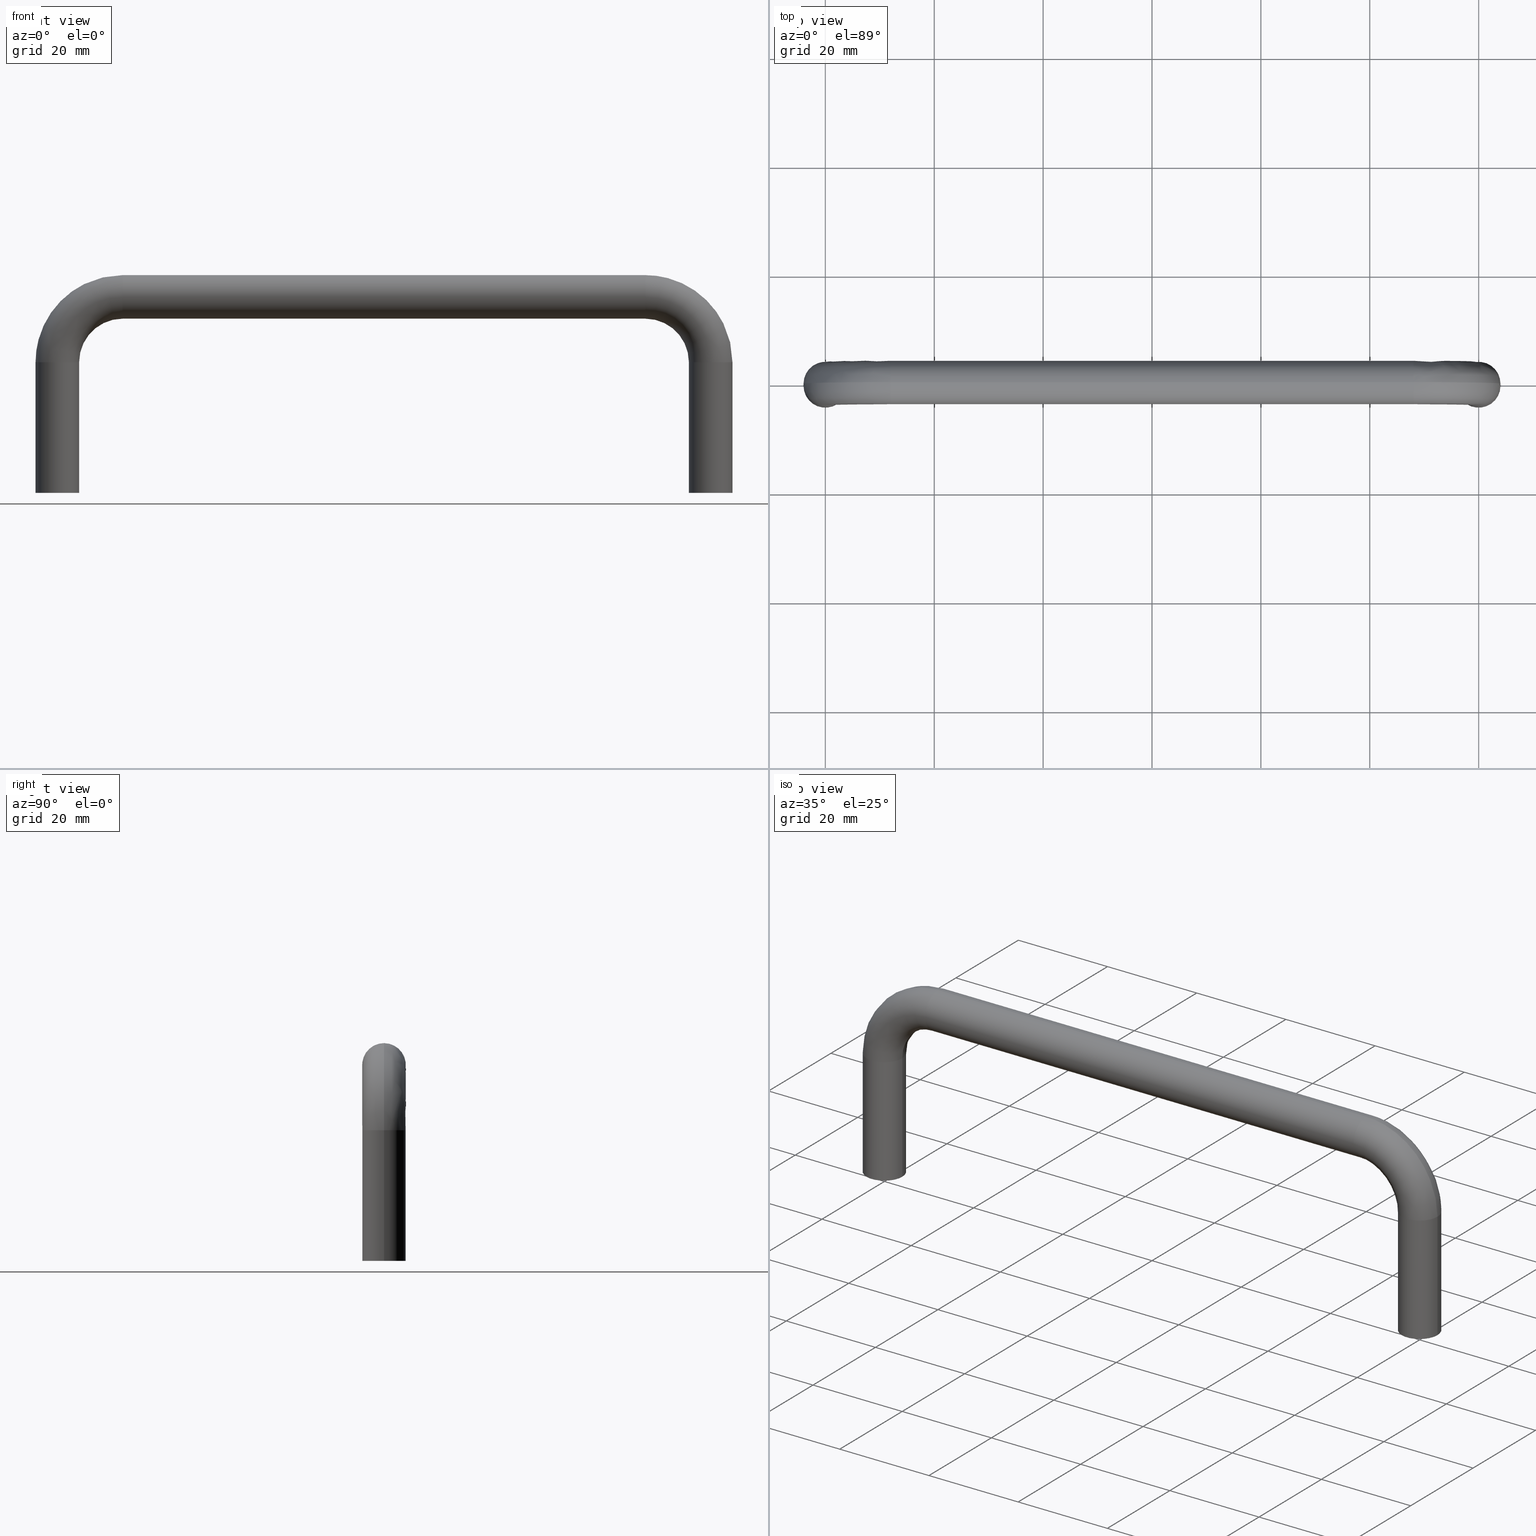
[diagram: canonical four-view strip — front | top / right | iso, engineering-drawing reading convention]
A machine part, canonical four-view strip (front | top / right | iso — engineering-drawing reading convention). The complete STEP part file that produces these views, byte-faithful:
ISO-10303-21;
HEADER;

FILE_DESCRIPTION( (''), '2;1');
FILE_NAME ('PC50.1864.THA_31SUS_6_TAP_3442.stp','2021-09-06T11:35:32',(''),(''),'spGate 17.5.2','','');

FILE_SCHEMA (('AUTOMOTIVE_DESIGN'));
ENDSEC;

DATA;
#10=(GEOMETRIC_REPRESENTATION_CONTEXT(3) GLOBAL_UNCERTAINTY_ASSIGNED_CONTEXT((#11)) GLOBAL_UNIT_ASSIGNED_CONTEXT((#12,#13,#14)) REPRESENTATION_CONTEXT('ID1','3D'));
#11=UNCERTAINTY_MEASURE_WITH_UNIT(LENGTH_MEASURE(0.01),#15,'DISTANCE_ACCURACY_VALUE','Maximum model space distance between geometric entities at asserted connectivities');
#12=(NAMED_UNIT(*) SI_UNIT($,.STERADIAN.) SOLID_ANGLE_UNIT());
#13=(CONVERSION_BASED_UNIT('DEGREE',#16) NAMED_UNIT(#17) PLANE_ANGLE_UNIT());
#14=(LENGTH_UNIT() NAMED_UNIT(*) SI_UNIT(.MILLI.,.METRE.));
#15=(LENGTH_UNIT() NAMED_UNIT(*) SI_UNIT(.MILLI.,.METRE.));
#16=PLANE_ANGLE_MEASURE_WITH_UNIT(PLANE_ANGLE_MEASURE(0.01745329252),#18);
#17=DIMENSIONAL_EXPONENTS(0.0,0.0,0.0,0.0,0.0,0.0,0.0);
#18=(NAMED_UNIT(*) PLANE_ANGLE_UNIT() SI_UNIT($,.RADIAN.));
#19=MANIFOLD_SOLID_BREP('THA_31SUS_6_TAP',#31);
#20=ADVANCED_BREP_SHAPE_REPRESENTATION('',(#19),#10);
#21=APPLICATION_CONTEXT('');
#22=APPLICATION_PROTOCOL_DEFINITION('International Standard','automotive_design',1999,#21);
#23=PRODUCT_DEFINITION_CONTEXT('',#21,'design');
#24=PRODUCT_CONTEXT('',#21,'mechanical');
#25=PRODUCT('','','',(#24));
#26=PRODUCT_DEFINITION_FORMATION_WITH_SPECIFIED_SOURCE('','',#25,.NOT_KNOWN.);
#27=PRODUCT_RELATED_PRODUCT_CATEGORY('tool','tool',(#25));
#28=PRODUCT_DEFINITION('','',#26,#23);
#29=PRODUCT_DEFINITION_SHAPE('','',#28);
#30=SHAPE_DEFINITION_REPRESENTATION(#29,#20);
#31=CLOSED_SHELL('',(#40,#41,#42,#43,#44,#45,#46,#47,#48,#49,#50,#51,#52,#53,#54,#55,#56,#57));
#32=COLOUR_RGB('',0.00000000000E+00,0.00000000000E+00,0.00000000000E+00);
#33=FILL_AREA_STYLE_COLOUR('',#32);
#34=FILL_AREA_STYLE('',(#33));
#35=SURFACE_STYLE_FILL_AREA(#34);
#36=SURFACE_SIDE_STYLE('',(#35));
#37=SURFACE_STYLE_USAGE(.BOTH.,#36);
#38=PRESENTATION_STYLE_ASSIGNMENT((#37));
#39=STYLED_ITEM('',(#38),#19);
#40=ADVANCED_FACE('',(#59),#58,.T.);
#41=ADVANCED_FACE('',(#69),#68,.F.);
#42=ADVANCED_FACE('',(#79,#80),#78,.F.);
#43=ADVANCED_FACE('',(#90),#89,.T.);
#44=ADVANCED_FACE('',(#100),#99,.T.);
#45=ADVANCED_FACE('',(#110),#109,.T.);
#46=ADVANCED_FACE('',(#120,#121),#119,.F.);
#47=ADVANCED_FACE('',(#131),#130,.F.);
#48=ADVANCED_FACE('',(#141),#140,.T.);
#49=ADVANCED_FACE('',(#151),#150,.T.);
#50=ADVANCED_FACE('',(#161),#160,.T.);
#51=ADVANCED_FACE('',(#171),#170,.T.);
#52=ADVANCED_FACE('',(#181),#180,.F.);
#53=ADVANCED_FACE('',(#191),#190,.F.);
#54=ADVANCED_FACE('',(#201),#200,.T.);
#55=ADVANCED_FACE('',(#211),#210,.T.);
#56=ADVANCED_FACE('',(#221),#220,.F.);
#57=ADVANCED_FACE('',(#231),#230,.F.);
#58=( BOUNDED_SURFACE() B_SPLINE_SURFACE( 3,3,((#240,#241,#242,#243,#244,#245,#246),(#247,#248,#249,#250,#251,#252,#253),(#254,#255,#256,#257,#258,#259,#260),(#261,#262,#263,#264,#265,#266,#267),(#268,#269,#270,#271,#272,#273,#274),(#275,#276,#277,#278,#279,#280,#281),(#282,#283,#284,#285,#286,#287,#288)), .UNSPECIFIED.,.F.,.F.,.F.) B_SPLINE_SURFACE_WITH_KNOTS((4,1,1,1,4),(4,1,1,1,4),(0.00000000000E+00,2.50000000000E-01,5.00000000000E-01,7.50000000000E-01,1.00000000000E+00),(0.00000000000E+00,2.49559115838E-01,5.00000000000E-01,7.50440884162E-01,1.00000000000E+00), .UNSPECIFIED. ) GEOMETRIC_REPRESENTATION_ITEM() RATIONAL_B_SPLINE_SURFACE(((1.00000000000E+00,1.00000000000E+00,1.00000000000E+00,1.00000000000E+00,1.00000000000E+00,1.00000000000E+00,1.00000000000E+00),(1.00000000000E+00,1.00000000000E+00,1.00000000000E+00,1.00000000000E+00,1.00000000000E+00,1.00000000000E+00,1.00000000000E+00),(1.00000000000E+00,1.00000000000E+00,1.00000000000E+00,1.00000000000E+00,1.00000000000E+00,1.00000000000E+00,1.00000000000E+00),(1.00000000000E+00,1.00000000000E+00,1.00000000000E+00,1.00000000000E+00,1.00000000000E+00,1.00000000000E+00,1.00000000000E+00),(1.00000000000E+00,1.00000000000E+00,1.00000000000E+00,1.00000000000E+00,1.00000000000E+00,1.00000000000E+00,1.00000000000E+00),(1.00000000000E+00,1.00000000000E+00,1.00000000000E+00,1.00000000000E+00,1.00000000000E+00,1.00000000000E+00,1.00000000000E+00),(1.00000000000E+00,1.00000000000E+00,1.00000000000E+00,1.00000000000E+00,1.00000000000E+00,1.00000000000E+00,1.00000000000E+00))) REPRESENTATION_ITEM('') SURFACE() );
#59=FACE_OUTER_BOUND('',#289,.T.);
#60=COLOUR_RGB('',1.00000000000E+00,1.00000000000E+00,1.00000000000E+00);
#61=FILL_AREA_STYLE_COLOUR('',#60);
#62=FILL_AREA_STYLE('',(#61));
#63=SURFACE_STYLE_FILL_AREA(#62);
#64=SURFACE_SIDE_STYLE('',(#63));
#65=SURFACE_STYLE_USAGE(.BOTH.,#64);
#66=PRESENTATION_STYLE_ASSIGNMENT((#65));
#67=STYLED_ITEM('',(#66),#40);
#68=PLANE('',#293);
#69=FACE_OUTER_BOUND('',#294,.T.);
#70=COLOUR_RGB('',1.00000000000E+00,1.00000000000E+00,1.00000000000E+00);
#71=FILL_AREA_STYLE_COLOUR('',#70);
#72=FILL_AREA_STYLE('',(#71));
#73=SURFACE_STYLE_FILL_AREA(#72);
#74=SURFACE_SIDE_STYLE('',(#73));
#75=SURFACE_STYLE_USAGE(.BOTH.,#74);
#76=PRESENTATION_STYLE_ASSIGNMENT((#75));
#77=STYLED_ITEM('',(#76),#41);
#78=PLANE('',#298);
#79=FACE_OUTER_BOUND('',#299,.T.);
#80=FACE_BOUND('',#300,.T.);
#81=COLOUR_RGB('',1.00000000000E+00,1.00000000000E+00,1.00000000000E+00);
#82=FILL_AREA_STYLE_COLOUR('',#81);
#83=FILL_AREA_STYLE('',(#82));
#84=SURFACE_STYLE_FILL_AREA(#83);
#85=SURFACE_SIDE_STYLE('',(#84));
#86=SURFACE_STYLE_USAGE(.BOTH.,#85);
#87=PRESENTATION_STYLE_ASSIGNMENT((#86));
#88=STYLED_ITEM('',(#87),#42);
#89=( BOUNDED_SURFACE() B_SPLINE_SURFACE( 2,2,((#301,#302,#303),(#304,#305,#306),(#307,#308,#309),(#310,#311,#312),(#313,#314,#315),(#316,#317,#318),(#319,#320,#321)), .UNSPECIFIED.,.F.,.F.,.F.) B_SPLINE_SURFACE_WITH_KNOTS((3,2,2,3),(3,3),(-3.14205275907E+00,-2.09454847089E+00,-1.04704418270E+00,4.60105483204E-04),(0.00000000000E+00,1.57079632679E+00), .UNSPECIFIED. ) GEOMETRIC_REPRESENTATION_ITEM() RATIONAL_B_SPLINE_SURFACE(((1.00000000000E+00,7.07106781187E-01,1.00000000000E+00),(8.65948709352E-01,6.12318204543E-01,8.65948709352E-01),(1.00000000000E+00,7.07106781187E-01,1.00000000000E+00),(8.65948709352E-01,6.12318204543E-01,8.65948709352E-01),(1.00000000000E+00,7.07106781187E-01,1.00000000000E+00),(8.65948709352E-01,6.12318204543E-01,8.65948709352E-01),(1.00000000000E+00,7.07106781187E-01,1.00000000000E+00))) REPRESENTATION_ITEM('') SURFACE() );
#90=FACE_OUTER_BOUND('',#322,.T.);
#91=COLOUR_RGB('',1.00000000000E+00,1.00000000000E+00,1.00000000000E+00);
#92=FILL_AREA_STYLE_COLOUR('',#91);
#93=FILL_AREA_STYLE('',(#92));
#94=SURFACE_STYLE_FILL_AREA(#93);
#95=SURFACE_SIDE_STYLE('',(#94));
#96=SURFACE_STYLE_USAGE(.BOTH.,#95);
#97=PRESENTATION_STYLE_ASSIGNMENT((#96));
#98=STYLED_ITEM('',(#97),#43);
#99=( BOUNDED_SURFACE() B_SPLINE_SURFACE( 3,3,((#323,#324,#325,#326,#327,#328,#329),(#330,#331,#332,#333,#334,#335,#336),(#337,#338,#339,#340,#341,#342,#343),(#344,#345,#346,#347,#348,#349,#350),(#351,#352,#353,#354,#355,#356,#357),(#358,#359,#360,#361,#362,#363,#364),(#365,#366,#367,#368,#369,#370,#371)), .UNSPECIFIED.,.F.,.F.,.F.) B_SPLINE_SURFACE_WITH_KNOTS((4,1,1,1,4),(4,1,1,1,4),(0.00000000000E+00,2.50000000000E-01,5.00000000000E-01,7.50000000000E-01,1.00000000000E+00),(0.00000000000E+00,2.49559115838E-01,5.00000000000E-01,7.50440884162E-01,1.00000000000E+00), .UNSPECIFIED. ) GEOMETRIC_REPRESENTATION_ITEM() RATIONAL_B_SPLINE_SURFACE(((1.00000000000E+00,1.00000000000E+00,1.00000000000E+00,1.00000000000E+00,1.00000000000E+00,1.00000000000E+00,1.00000000000E+00),(1.00000000000E+00,1.00000000000E+00,1.00000000000E+00,1.00000000000E+00,1.00000000000E+00,1.00000000000E+00,1.00000000000E+00),(1.00000000000E+00,1.00000000000E+00,1.00000000000E+00,1.00000000000E+00,1.00000000000E+00,1.00000000000E+00,1.00000000000E+00),(1.00000000000E+00,1.00000000000E+00,1.00000000000E+00,1.00000000000E+00,1.00000000000E+00,1.00000000000E+00,1.00000000000E+00),(1.00000000000E+00,1.00000000000E+00,1.00000000000E+00,1.00000000000E+00,1.00000000000E+00,1.00000000000E+00,1.00000000000E+00),(1.00000000000E+00,1.00000000000E+00,1.00000000000E+00,1.00000000000E+00,1.00000000000E+00,1.00000000000E+00,1.00000000000E+00),(1.00000000000E+00,1.00000000000E+00,1.00000000000E+00,1.00000000000E+00,1.00000000000E+00,1.00000000000E+00,1.00000000000E+00))) REPRESENTATION_ITEM('') SURFACE() );
#100=FACE_OUTER_BOUND('',#372,.T.);
#101=COLOUR_RGB('',1.00000000000E+00,1.00000000000E+00,1.00000000000E+00);
#102=FILL_AREA_STYLE_COLOUR('',#101);
#103=FILL_AREA_STYLE('',(#102));
#104=SURFACE_STYLE_FILL_AREA(#103);
#105=SURFACE_SIDE_STYLE('',(#104));
#106=SURFACE_STYLE_USAGE(.BOTH.,#105);
#107=PRESENTATION_STYLE_ASSIGNMENT((#106));
#108=STYLED_ITEM('',(#107),#44);
#109=( BOUNDED_SURFACE() B_SPLINE_SURFACE( 3,3,((#373,#374,#375,#376,#377,#378,#379),(#380,#381,#382,#383,#384,#385,#386),(#387,#388,#389,#390,#391,#392,#393),(#394,#395,#396,#397,#398,#399,#400),(#401,#402,#403,#404,#405,#406,#407),(#408,#409,#410,#411,#412,#413,#414),(#415,#416,#417,#418,#419,#420,#421)), .UNSPECIFIED.,.F.,.F.,.F.) B_SPLINE_SURFACE_WITH_KNOTS((4,1,1,1,4),(4,1,1,1,4),(0.00000000000E+00,2.50000000000E-01,5.00000000000E-01,7.50000000000E-01,1.00000000000E+00),(0.00000000000E+00,2.49559115838E-01,5.00000000000E-01,7.50440884162E-01,1.00000000000E+00), .UNSPECIFIED. ) GEOMETRIC_REPRESENTATION_ITEM() RATIONAL_B_SPLINE_SURFACE(((1.00000000000E+00,1.00000000000E+00,1.00000000000E+00,1.00000000000E+00,1.00000000000E+00,1.00000000000E+00,1.00000000000E+00),(1.00000000000E+00,1.00000000000E+00,1.00000000000E+00,1.00000000000E+00,1.00000000000E+00,1.00000000000E+00,1.00000000000E+00),(1.00000000000E+00,1.00000000000E+00,1.00000000000E+00,1.00000000000E+00,1.00000000000E+00,1.00000000000E+00,1.00000000000E+00),(1.00000000000E+00,1.00000000000E+00,1.00000000000E+00,1.00000000000E+00,1.00000000000E+00,1.00000000000E+00,1.00000000000E+00),(1.00000000000E+00,1.00000000000E+00,1.00000000000E+00,1.00000000000E+00,1.00000000000E+00,1.00000000000E+00,1.00000000000E+00),(1.00000000000E+00,1.00000000000E+00,1.00000000000E+00,1.00000000000E+00,1.00000000000E+00,1.00000000000E+00,1.00000000000E+00),(1.00000000000E+00,1.00000000000E+00,1.00000000000E+00,1.00000000000E+00,1.00000000000E+00,1.00000000000E+00,1.00000000000E+00))) REPRESENTATION_ITEM('') SURFACE() );
#110=FACE_OUTER_BOUND('',#422,.T.);
#111=COLOUR_RGB('',1.00000000000E+00,1.00000000000E+00,1.00000000000E+00);
#112=FILL_AREA_STYLE_COLOUR('',#111);
#113=FILL_AREA_STYLE('',(#112));
#114=SURFACE_STYLE_FILL_AREA(#113);
#115=SURFACE_SIDE_STYLE('',(#114));
#116=SURFACE_STYLE_USAGE(.BOTH.,#115);
#117=PRESENTATION_STYLE_ASSIGNMENT((#116));
#118=STYLED_ITEM('',(#117),#45);
#119=PLANE('',#426);
#120=FACE_OUTER_BOUND('',#427,.T.);
#121=FACE_BOUND('',#428,.T.);
#122=COLOUR_RGB('',1.00000000000E+00,1.00000000000E+00,1.00000000000E+00);
#123=FILL_AREA_STYLE_COLOUR('',#122);
#124=FILL_AREA_STYLE('',(#123));
#125=SURFACE_STYLE_FILL_AREA(#124);
#126=SURFACE_SIDE_STYLE('',(#125));
#127=SURFACE_STYLE_USAGE(.BOTH.,#126);
#128=PRESENTATION_STYLE_ASSIGNMENT((#127));
#129=STYLED_ITEM('',(#128),#46);
#130=PLANE('',#432);
#131=FACE_OUTER_BOUND('',#433,.T.);
#132=COLOUR_RGB('',1.00000000000E+00,1.00000000000E+00,1.00000000000E+00);
#133=FILL_AREA_STYLE_COLOUR('',#132);
#134=FILL_AREA_STYLE('',(#133));
#135=SURFACE_STYLE_FILL_AREA(#134);
#136=SURFACE_SIDE_STYLE('',(#135));
#137=SURFACE_STYLE_USAGE(.BOTH.,#136);
#138=PRESENTATION_STYLE_ASSIGNMENT((#137));
#139=STYLED_ITEM('',(#138),#47);
#140=CYLINDRICAL_SURFACE('',#437,4.00000000000E+00);
#141=FACE_OUTER_BOUND('',#438,.T.);
#142=COLOUR_RGB('',1.00000000000E+00,1.00000000000E+00,1.00000000000E+00);
#143=FILL_AREA_STYLE_COLOUR('',#142);
#144=FILL_AREA_STYLE('',(#143));
#145=SURFACE_STYLE_FILL_AREA(#144);
#146=SURFACE_SIDE_STYLE('',(#145));
#147=SURFACE_STYLE_USAGE(.BOTH.,#146);
#148=PRESENTATION_STYLE_ASSIGNMENT((#147));
#149=STYLED_ITEM('',(#148),#48);
#150=CYLINDRICAL_SURFACE('',#442,4.00000000000E+00);
#151=FACE_OUTER_BOUND('',#443,.T.);
#152=COLOUR_RGB('',1.00000000000E+00,1.00000000000E+00,1.00000000000E+00);
#153=FILL_AREA_STYLE_COLOUR('',#152);
#154=FILL_AREA_STYLE('',(#153));
#155=SURFACE_STYLE_FILL_AREA(#154);
#156=SURFACE_SIDE_STYLE('',(#155));
#157=SURFACE_STYLE_USAGE(.BOTH.,#156);
#158=PRESENTATION_STYLE_ASSIGNMENT((#157));
#159=STYLED_ITEM('',(#158),#49);
#160=CYLINDRICAL_SURFACE('',#447,4.00000000000E+00);
#161=FACE_OUTER_BOUND('',#448,.T.);
#162=COLOUR_RGB('',1.00000000000E+00,1.00000000000E+00,1.00000000000E+00);
#163=FILL_AREA_STYLE_COLOUR('',#162);
#164=FILL_AREA_STYLE('',(#163));
#165=SURFACE_STYLE_FILL_AREA(#164);
#166=SURFACE_SIDE_STYLE('',(#165));
#167=SURFACE_STYLE_USAGE(.BOTH.,#166);
#168=PRESENTATION_STYLE_ASSIGNMENT((#167));
#169=STYLED_ITEM('',(#168),#50);
#170=CYLINDRICAL_SURFACE('',#452,4.00000000000E+00);
#171=FACE_OUTER_BOUND('',#453,.T.);
#172=COLOUR_RGB('',1.00000000000E+00,1.00000000000E+00,1.00000000000E+00);
#173=FILL_AREA_STYLE_COLOUR('',#172);
#174=FILL_AREA_STYLE('',(#173));
#175=SURFACE_STYLE_FILL_AREA(#174);
#176=SURFACE_SIDE_STYLE('',(#175));
#177=SURFACE_STYLE_USAGE(.BOTH.,#176);
#178=PRESENTATION_STYLE_ASSIGNMENT((#177));
#179=STYLED_ITEM('',(#178),#51);
#180=CYLINDRICAL_SURFACE('',#457,2.50000000000E+00);
#181=FACE_OUTER_BOUND('',#458,.T.);
#182=COLOUR_RGB('',1.00000000000E+00,1.00000000000E+00,1.00000000000E+00);
#183=FILL_AREA_STYLE_COLOUR('',#182);
#184=FILL_AREA_STYLE('',(#183));
#185=SURFACE_STYLE_FILL_AREA(#184);
#186=SURFACE_SIDE_STYLE('',(#185));
#187=SURFACE_STYLE_USAGE(.BOTH.,#186);
#188=PRESENTATION_STYLE_ASSIGNMENT((#187));
#189=STYLED_ITEM('',(#188),#52);
#190=CYLINDRICAL_SURFACE('',#462,2.50000000000E+00);
#191=FACE_OUTER_BOUND('',#463,.T.);
#192=COLOUR_RGB('',1.00000000000E+00,1.00000000000E+00,1.00000000000E+00);
#193=FILL_AREA_STYLE_COLOUR('',#192);
#194=FILL_AREA_STYLE('',(#193));
#195=SURFACE_STYLE_FILL_AREA(#194);
#196=SURFACE_SIDE_STYLE('',(#195));
#197=SURFACE_STYLE_USAGE(.BOTH.,#196);
#198=PRESENTATION_STYLE_ASSIGNMENT((#197));
#199=STYLED_ITEM('',(#198),#53);
#200=CYLINDRICAL_SURFACE('',#467,4.00000000000E+00);
#201=FACE_OUTER_BOUND('',#468,.T.);
#202=COLOUR_RGB('',1.00000000000E+00,1.00000000000E+00,1.00000000000E+00);
#203=FILL_AREA_STYLE_COLOUR('',#202);
#204=FILL_AREA_STYLE('',(#203));
#205=SURFACE_STYLE_FILL_AREA(#204);
#206=SURFACE_SIDE_STYLE('',(#205));
#207=SURFACE_STYLE_USAGE(.BOTH.,#206);
#208=PRESENTATION_STYLE_ASSIGNMENT((#207));
#209=STYLED_ITEM('',(#208),#54);
#210=CYLINDRICAL_SURFACE('',#472,4.00000000000E+00);
#211=FACE_OUTER_BOUND('',#473,.T.);
#212=COLOUR_RGB('',1.00000000000E+00,1.00000000000E+00,1.00000000000E+00);
#213=FILL_AREA_STYLE_COLOUR('',#212);
#214=FILL_AREA_STYLE('',(#213));
#215=SURFACE_STYLE_FILL_AREA(#214);
#216=SURFACE_SIDE_STYLE('',(#215));
#217=SURFACE_STYLE_USAGE(.BOTH.,#216);
#218=PRESENTATION_STYLE_ASSIGNMENT((#217));
#219=STYLED_ITEM('',(#218),#55);
#220=CYLINDRICAL_SURFACE('',#477,2.50000000000E+00);
#221=FACE_OUTER_BOUND('',#478,.T.);
#222=COLOUR_RGB('',1.00000000000E+00,1.00000000000E+00,1.00000000000E+00);
#223=FILL_AREA_STYLE_COLOUR('',#222);
#224=FILL_AREA_STYLE('',(#223));
#225=SURFACE_STYLE_FILL_AREA(#224);
#226=SURFACE_SIDE_STYLE('',(#225));
#227=SURFACE_STYLE_USAGE(.BOTH.,#226);
#228=PRESENTATION_STYLE_ASSIGNMENT((#227));
#229=STYLED_ITEM('',(#228),#56);
#230=CYLINDRICAL_SURFACE('',#482,2.50000000000E+00);
#231=FACE_OUTER_BOUND('',#483,.T.);
#232=COLOUR_RGB('',1.00000000000E+00,1.00000000000E+00,1.00000000000E+00);
#233=FILL_AREA_STYLE_COLOUR('',#232);
#234=FILL_AREA_STYLE('',(#233));
#235=SURFACE_STYLE_FILL_AREA(#234);
#236=SURFACE_SIDE_STYLE('',(#235));
#237=SURFACE_STYLE_USAGE(.BOTH.,#236);
#238=PRESENTATION_STYLE_ASSIGNMENT((#237));
#239=STYLED_ITEM('',(#238),#57);
#240=CARTESIAN_POINT('',(5.59999999995E+01,-4.89842541529E-16,-8.00000000000E+00));
#241=CARTESIAN_POINT('',(5.59999999995E+01,-4.89842541529E-16,-6.95464912813E+00));
#242=CARTESIAN_POINT('',(5.55842536145E+01,-4.89842541529E-16,-4.86085404799E+00));
#243=CARTESIAN_POINT('',(5.38046917398E+01,-4.89842541529E-16,-2.19530825965E+00));
#244=CARTESIAN_POINT('',(5.11391459515E+01,-4.89842541529E-16,-4.15746385008E-01));
#245=CARTESIAN_POINT('',(4.90453508714E+01,-4.89842541529E-16,3.55271367880E-15));
#246=CARTESIAN_POINT('',(4.79999999995E+01,-4.89842541529E-16,3.55271367880E-15));
#247=CARTESIAN_POINT('',(5.59947818338E+01,-1.04653676220E+00,-8.00000000000E+00));
#248=CARTESIAN_POINT('',(5.59947818338E+01,-1.04653676220E+00,-6.93760535475E+00));
#249=CARTESIAN_POINT('',(5.55786726132E+01,-1.04653676220E+00,-4.87116173382E+00));
#250=CARTESIAN_POINT('',(5.38031329626E+01,-1.04653676220E+00,-2.19686703690E+00));
#251=CARTESIAN_POINT('',(5.11288382657E+01,-1.04653676220E+00,-4.21327386263E-01));
#252=CARTESIAN_POINT('',(4.90623946448E+01,-1.04653676220E+00,-5.21816571468E-03));
#253=CARTESIAN_POINT('',(4.79999999995E+01,-1.04653676220E+00,-5.21816571469E-03));
#254=CARTESIAN_POINT('',(5.68649211604E+01,-3.13518975623E+00,-8.00000000000E+00));
#255=CARTESIAN_POINT('',(5.68649211604E+01,-3.13518975623E+00,-6.80156103731E+00));
#256=CARTESIAN_POINT('',(5.64027930667E+01,-3.13518975623E+00,-4.54013730411E+00));
#257=CARTESIAN_POINT('',(5.44373021201E+01,-3.13518975623E+00,-1.56269787944E+00));
#258=CARTESIAN_POINT('',(5.14598626954E+01,-3.13518975623E+00,4.02793067178E-01));
#259=CARTESIAN_POINT('',(4.91984389622E+01,-3.13518975623E+00,8.64921160933E-01));
#260=CARTESIAN_POINT('',(4.79999999995E+01,-3.13518975623E+00,8.64921160933E-01));
#261=CARTESIAN_POINT('',(5.99999999995E+01,-4.43641415899E+00,-8.00000000000E+00));
#262=CARTESIAN_POINT('',(5.99999999995E+01,-4.43641415899E+00,-6.43197369220E+00));
#263=CARTESIAN_POINT('',(5.93763804220E+01,-4.43641415899E+00,-3.29128107198E+00));
#264=CARTESIAN_POINT('',(5.67070376100E+01,-4.43641415899E+00,7.07037610521E-01));
#265=CARTESIAN_POINT('',(5.27087189275E+01,-4.43641415899E+00,3.37638042249E+00));
#266=CARTESIAN_POINT('',(4.95680263073E+01,-4.43641415899E+00,4.00000000000E+00));
#267=CARTESIAN_POINT('',(4.79999999995E+01,-4.43641415899E+00,4.00000000000E+00));
#268=CARTESIAN_POINT('',(6.31350788386E+01,-3.13518975623E+00,-8.00000000000E+00));
#269=CARTESIAN_POINT('',(6.31350788386E+01,-3.13518975623E+00,-6.06238634709E+00));
#270=CARTESIAN_POINT('',(6.23499677773E+01,-3.13518975623E+00,-2.04242483986E+00));
#271=CARTESIAN_POINT('',(5.89767731000E+01,-3.13518975623E+00,2.97677310048E+00));
#272=CARTESIAN_POINT('',(5.39575751596E+01,-3.13518975623E+00,6.34996777780E+00));
#273=CARTESIAN_POINT('',(4.99376136524E+01,-3.13518975623E+00,7.13507883907E+00));
#274=CARTESIAN_POINT('',(4.79999999995E+01,-3.13518975623E+00,7.13507883907E+00));
#275=CARTESIAN_POINT('',(6.40052181652E+01,-1.04653676220E+00,-8.00000000000E+00));
#276=CARTESIAN_POINT('',(6.40052181652E+01,-1.04653676220E+00,-5.92634202965E+00));
#277=CARTESIAN_POINT('',(6.31740882307E+01,-1.04653676220E+00,-1.71140041015E+00));
#278=CARTESIAN_POINT('',(5.96109422574E+01,-1.04653676219E+00,3.61094225795E+00));
#279=CARTESIAN_POINT('',(5.42885995894E+01,-1.04653676220E+00,7.17408823124E+00));
#280=CARTESIAN_POINT('',(5.00736579698E+01,-1.04653676220E+00,8.00521816571E+00));
#281=CARTESIAN_POINT('',(4.79999999995E+01,-1.04653676220E+00,8.00521816571E+00));
#282=CARTESIAN_POINT('',(6.39999999995E+01,0.00000000000E+00,-8.00000000000E+00));
#283=CARTESIAN_POINT('',(6.39999999995E+01,0.00000000000E+00,-5.90929825627E+00));
#284=CARTESIAN_POINT('',(6.31685072295E+01,0.00000000000E+00,-1.72170809598E+00));
#285=CARTESIAN_POINT('',(5.96093834802E+01,0.00000000000E+00,3.60938348069E+00));
#286=CARTESIAN_POINT('',(5.42782919035E+01,0.00000000000E+00,7.16850722998E+00));
#287=CARTESIAN_POINT('',(5.00907017432E+01,0.00000000000E+00,8.00000000000E+00));
#288=CARTESIAN_POINT('',(4.79999999995E+01,0.00000000000E+00,8.00000000000E+00));
#289=EDGE_LOOP('',(#484,#485,#486,#487));
#290=CARTESIAN_POINT('',(-5.42499999989E+01,5.19615242271E+00,-2.20000000000E+01));
#291=DIRECTION('',(-1.22464679914E-16,0.00000000000E+00,1.00000000000E+00));
#292=DIRECTION('',(-1.00000000000E+00,0.00000000000E+00,-1.22464679914E-16));
#293=AXIS2_PLACEMENT_3D('',#290,#291,#292);
#294=EDGE_LOOP('',(#488,#489));
#295=CARTESIAN_POINT('',(5.47999999994E+01,-8.31384387633E+00,-3.20000000000E+01));
#296=DIRECTION('',(0.00000000000E+00,0.00000000000E+00,1.00000000000E+00));
#297=DIRECTION('',(1.00000000000E+00,0.00000000000E+00,-0.00000000000E+00));
#298=AXIS2_PLACEMENT_3D('',#295,#296,#297);
#299=EDGE_LOOP('',(#490,#491));
#300=EDGE_LOOP('',(#492,#493));
#301=CARTESIAN_POINT('',(4.79999999995E+01,-1.84042186788E-03,4.23393965221E-07));
#302=CARTESIAN_POINT('',(5.60000004229E+01,-1.84042186788E-03,4.23393965221E-07));
#303=CARTESIAN_POINT('',(5.60000004229E+01,-1.84042186788E-03,-8.00000000000E+00));
#304=CARTESIAN_POINT('',(4.79999999995E+01,2.30837844810E+00,-1.06252105052E-03));
#305=CARTESIAN_POINT('',(5.59989374784E+01,2.30837844810E+00,-1.06252105052E-03));
#306=CARTESIAN_POINT('',(5.59989374784E+01,2.30837844810E+00,-8.00000000000E+00));
#307=CARTESIAN_POINT('',(4.79999999995E+01,3.46379483741E+00,1.99946873947E+00));
#308=CARTESIAN_POINT('',(5.79994687390E+01,3.46379483741E+00,1.99946873947E+00));
#309=CARTESIAN_POINT('',(5.79994687390E+01,3.46379483741E+00,-8.00000000000E+00));
#310=CARTESIAN_POINT('',(4.79999999995E+01,4.61921122672E+00,4.00000000000E+00));
#311=CARTESIAN_POINT('',(5.99999999995E+01,4.61921122672E+00,4.00000000000E+00));
#312=CARTESIAN_POINT('',(5.99999999995E+01,4.61921122672E+00,-8.00000000000E+00));
#313=CARTESIAN_POINT('',(4.79999999995E+01,3.46379483741E+00,6.00053126053E+00));
#314=CARTESIAN_POINT('',(6.20005312600E+01,3.46379483741E+00,6.00053126053E+00));
#315=CARTESIAN_POINT('',(6.20005312600E+01,3.46379483741E+00,-8.00000000000E+00));
#316=CARTESIAN_POINT('',(4.79999999995E+01,2.30837844810E+00,8.00106252105E+00));
#317=CARTESIAN_POINT('',(6.40010625206E+01,2.30837844810E+00,8.00106252105E+00));
#318=CARTESIAN_POINT('',(6.40010625206E+01,2.30837844810E+00,-8.00000000000E+00));
#319=CARTESIAN_POINT('',(4.79999999995E+01,-1.84042186788E-03,7.99999957661E+00));
#320=CARTESIAN_POINT('',(6.39999995761E+01,-1.84042186788E-03,7.99999957661E+00));
#321=CARTESIAN_POINT('',(6.39999995761E+01,-1.84042186788E-03,-8.00000000000E+00));
#322=EDGE_LOOP('',(#494,#495,#496,#497));
#323=CARTESIAN_POINT('',(-4.79999999995E+01,-4.89842541529E-16,0.00000000000E+00));
#324=CARTESIAN_POINT('',(-4.90453508714E+01,-4.89842541529E-16,-9.28458085406E-16));
#325=CARTESIAN_POINT('',(-5.11391459515E+01,-4.89842541529E-16,-4.15746385008E-01));
#326=CARTESIAN_POINT('',(-5.38046917398E+01,-4.89842541529E-16,-2.19530825965E+00));
#327=CARTESIAN_POINT('',(-5.55842536145E+01,-4.89842541529E-16,-4.86085404799E+00));
#328=CARTESIAN_POINT('',(-5.59999999995E+01,-4.89842541529E-16,-6.95464912813E+00));
#329=CARTESIAN_POINT('',(-5.59999999995E+01,-4.89842541529E-16,-8.00000000000E+00));
#330=CARTESIAN_POINT('',(-4.79999999995E+01,-1.04653676220E+00,-5.21816571468E-03));
#331=CARTESIAN_POINT('',(-4.90623946448E+01,-1.04653676220E+00,-5.21816571468E-03));
#332=CARTESIAN_POINT('',(-5.11288382657E+01,-1.04653676220E+00,-4.21327386263E-01));
#333=CARTESIAN_POINT('',(-5.38031329626E+01,-1.04653676220E+00,-2.19686703690E+00));
#334=CARTESIAN_POINT('',(-5.55786726132E+01,-1.04653676220E+00,-4.87116173382E+00));
#335=CARTESIAN_POINT('',(-5.59947818338E+01,-1.04653676220E+00,-6.93760535475E+00));
#336=CARTESIAN_POINT('',(-5.59947818338E+01,-1.04653676220E+00,-8.00000000000E+00));
#337=CARTESIAN_POINT('',(-4.79999999995E+01,-3.13518975623E+00,8.64921160933E-01));
#338=CARTESIAN_POINT('',(-4.91984389622E+01,-3.13518975623E+00,8.64921160933E-01));
#339=CARTESIAN_POINT('',(-5.14598626954E+01,-3.13518975623E+00,4.02793067178E-01));
#340=CARTESIAN_POINT('',(-5.44373021201E+01,-3.13518975623E+00,-1.56269787944E+00));
#341=CARTESIAN_POINT('',(-5.64027930667E+01,-3.13518975623E+00,-4.54013730411E+00));
#342=CARTESIAN_POINT('',(-5.68649211604E+01,-3.13518975623E+00,-6.80156103731E+00));
#343=CARTESIAN_POINT('',(-5.68649211604E+01,-3.13518975623E+00,-8.00000000000E+00));
#344=CARTESIAN_POINT('',(-4.79999999995E+01,-4.43641415899E+00,4.00000000000E+00));
#345=CARTESIAN_POINT('',(-4.95680263073E+01,-4.43641415899E+00,4.00000000000E+00));
#346=CARTESIAN_POINT('',(-5.27087189275E+01,-4.43641415899E+00,3.37638042249E+00));
#347=CARTESIAN_POINT('',(-5.67070376100E+01,-4.43641415899E+00,7.07037610521E-01));
#348=CARTESIAN_POINT('',(-5.93763804220E+01,-4.43641415899E+00,-3.29128107198E+00));
#349=CARTESIAN_POINT('',(-5.99999999995E+01,-4.43641415899E+00,-6.43197369220E+00));
#350=CARTESIAN_POINT('',(-5.99999999995E+01,-4.43641415899E+00,-8.00000000000E+00));
#351=CARTESIAN_POINT('',(-4.79999999995E+01,-3.13518975623E+00,7.13507883907E+00));
#352=CARTESIAN_POINT('',(-4.99376136524E+01,-3.13518975623E+00,7.13507883907E+00));
#353=CARTESIAN_POINT('',(-5.39575751596E+01,-3.13518975623E+00,6.34996777780E+00));
#354=CARTESIAN_POINT('',(-5.89767731000E+01,-3.13518975623E+00,2.97677310048E+00));
#355=CARTESIAN_POINT('',(-6.23499677773E+01,-3.13518975623E+00,-2.04242483986E+00));
#356=CARTESIAN_POINT('',(-6.31350788386E+01,-3.13518975623E+00,-6.06238634709E+00));
#357=CARTESIAN_POINT('',(-6.31350788386E+01,-3.13518975623E+00,-8.00000000000E+00));
#358=CARTESIAN_POINT('',(-4.79999999995E+01,-1.04653676220E+00,8.00521816571E+00));
#359=CARTESIAN_POINT('',(-5.00736579698E+01,-1.04653676220E+00,8.00521816571E+00));
#360=CARTESIAN_POINT('',(-5.42885995894E+01,-1.04653676220E+00,7.17408823124E+00));
#361=CARTESIAN_POINT('',(-5.96109422574E+01,-1.04653676219E+00,3.61094225795E+00));
#362=CARTESIAN_POINT('',(-6.31740882307E+01,-1.04653676220E+00,-1.71140041015E+00));
#363=CARTESIAN_POINT('',(-6.40052181652E+01,-1.04653676220E+00,-5.92634202965E+00));
#364=CARTESIAN_POINT('',(-6.40052181652E+01,-1.04653676220E+00,-8.00000000000E+00));
#365=CARTESIAN_POINT('',(-4.79999999995E+01,0.00000000000E+00,8.00000000000E+00));
#366=CARTESIAN_POINT('',(-5.00907017432E+01,0.00000000000E+00,8.00000000000E+00));
#367=CARTESIAN_POINT('',(-5.42782919035E+01,0.00000000000E+00,7.16850722998E+00));
#368=CARTESIAN_POINT('',(-5.96093834802E+01,0.00000000000E+00,3.60938348069E+00));
#369=CARTESIAN_POINT('',(-6.31685072295E+01,0.00000000000E+00,-1.72170809598E+00));
#370=CARTESIAN_POINT('',(-6.39999999995E+01,0.00000000000E+00,-5.90929825627E+00));
#371=CARTESIAN_POINT('',(-6.39999999995E+01,0.00000000000E+00,-8.00000000000E+00));
#372=EDGE_LOOP('',(#498,#499,#500,#501));
#373=CARTESIAN_POINT('',(-4.79999999995E+01,0.00000000000E+00,8.00000000000E+00));
#374=CARTESIAN_POINT('',(-5.00907017432E+01,0.00000000000E+00,8.00000000000E+00));
#375=CARTESIAN_POINT('',(-5.42782919035E+01,0.00000000000E+00,7.16850722999E+00));
#376=CARTESIAN_POINT('',(-5.96093834802E+01,0.00000000000E+00,3.60938348070E+00));
#377=CARTESIAN_POINT('',(-6.31685072295E+01,0.00000000000E+00,-1.72170809596E+00));
#378=CARTESIAN_POINT('',(-6.39999999995E+01,0.00000000000E+00,-5.90929825625E+00));
#379=CARTESIAN_POINT('',(-6.39999999995E+01,0.00000000000E+00,-7.99999999998E+00));
#380=CARTESIAN_POINT('',(-4.79999999995E+01,1.04653676220E+00,8.00521816571E+00));
#381=CARTESIAN_POINT('',(-5.00736579698E+01,1.04653676220E+00,8.00521816571E+00));
#382=CARTESIAN_POINT('',(-5.42885995893E+01,1.04653676220E+00,7.17408823124E+00));
#383=CARTESIAN_POINT('',(-5.96109422574E+01,1.04653676220E+00,3.61094225795E+00));
#384=CARTESIAN_POINT('',(-6.31740882307E+01,1.04653676220E+00,-1.71140041013E+00));
#385=CARTESIAN_POINT('',(-6.40052181652E+01,1.04653676220E+00,-5.92634202964E+00));
#386=CARTESIAN_POINT('',(-6.40052181652E+01,1.04653676220E+00,-7.99999999998E+00));
#387=CARTESIAN_POINT('',(-4.79999999995E+01,3.13518975623E+00,7.13507883907E+00));
#388=CARTESIAN_POINT('',(-4.99376136524E+01,3.13518975623E+00,7.13507883907E+00));
#389=CARTESIAN_POINT('',(-5.39575751596E+01,3.13518975623E+00,6.34996777780E+00));
#390=CARTESIAN_POINT('',(-5.89767731000E+01,3.13518975623E+00,2.97677310049E+00));
#391=CARTESIAN_POINT('',(-6.23499677773E+01,3.13518975622E+00,-2.04242483985E+00));
#392=CARTESIAN_POINT('',(-6.31350788386E+01,3.13518975622E+00,-6.06238634708E+00));
#393=CARTESIAN_POINT('',(-6.31350788386E+01,3.13518975622E+00,-7.99999999998E+00));
#394=CARTESIAN_POINT('',(-4.79999999995E+01,4.43641415899E+00,4.00000000000E+00));
#395=CARTESIAN_POINT('',(-4.95680263073E+01,4.43641415899E+00,4.00000000000E+00));
#396=CARTESIAN_POINT('',(-5.27087189275E+01,4.43641415899E+00,3.37638042249E+00));
#397=CARTESIAN_POINT('',(-5.67070376100E+01,4.43641415899E+00,7.07037610526E-01));
#398=CARTESIAN_POINT('',(-5.93763804220E+01,4.43641415899E+00,-3.29128107197E+00));
#399=CARTESIAN_POINT('',(-5.99999999995E+01,4.43641415899E+00,-6.43197369219E+00));
#400=CARTESIAN_POINT('',(-5.99999999995E+01,4.43641415899E+00,-7.99999999999E+00));
#401=CARTESIAN_POINT('',(-4.79999999995E+01,3.13518975623E+00,8.64921160933E-01));
#402=CARTESIAN_POINT('',(-4.91984389622E+01,3.13518975623E+00,8.64921160933E-01));
#403=CARTESIAN_POINT('',(-5.14598626954E+01,3.13518975623E+00,4.02793067179E-01));
#404=CARTESIAN_POINT('',(-5.44373021201E+01,3.13518975623E+00,-1.56269787943E+00));
#405=CARTESIAN_POINT('',(-5.64027930667E+01,3.13518975623E+00,-4.54013730409E+00));
#406=CARTESIAN_POINT('',(-5.68649211604E+01,3.13518975622E+00,-6.80156103730E+00));
#407=CARTESIAN_POINT('',(-5.68649211604E+01,3.13518975622E+00,-7.99999999999E+00));
#408=CARTESIAN_POINT('',(-4.79999999995E+01,1.04653676220E+00,-5.21816571469E-03));
#409=CARTESIAN_POINT('',(-4.90623946448E+01,1.04653676220E+00,-5.21816571469E-03));
#410=CARTESIAN_POINT('',(-5.11288382657E+01,1.04653676220E+00,-4.21327386262E-01));
#411=CARTESIAN_POINT('',(-5.38031329626E+01,1.04653676220E+00,-2.19686703690E+00));
#412=CARTESIAN_POINT('',(-5.55786726132E+01,1.04653676220E+00,-4.87116173381E+00));
#413=CARTESIAN_POINT('',(-5.59947818338E+01,1.04653676220E+00,-6.93760535474E+00));
#414=CARTESIAN_POINT('',(-5.59947818338E+01,1.04653676220E+00,-7.99999999999E+00));
#415=CARTESIAN_POINT('',(-4.79999999995E+01,4.89842541529E-16,0.00000000000E+00));
#416=CARTESIAN_POINT('',(-4.90453508714E+01,4.89842541529E-16,-9.28458085404E-16));
#417=CARTESIAN_POINT('',(-5.11391459515E+01,4.89842541529E-16,-4.15746385007E-01));
#418=CARTESIAN_POINT('',(-5.38046917398E+01,4.89842541529E-16,-2.19530825965E+00));
#419=CARTESIAN_POINT('',(-5.55842536145E+01,4.89842541529E-16,-4.86085404798E+00));
#420=CARTESIAN_POINT('',(-5.59999999995E+01,4.89842541529E-16,-6.95464912812E+00));
#421=CARTESIAN_POINT('',(-5.59999999995E+01,4.89842541529E-16,-7.99999999999E+00));
#422=EDGE_LOOP('',(#502,#503,#504,#505));
#423=CARTESIAN_POINT('',(-5.07999999994E+01,8.31384387633E+00,-3.20000000000E+01));
#424=DIRECTION('',(-1.22464679914E-16,0.00000000000E+00,1.00000000000E+00));
#425=DIRECTION('',(-1.00000000000E+00,0.00000000000E+00,-1.22464679914E-16));
#426=AXIS2_PLACEMENT_3D('',#423,#424,#425);
#427=EDGE_LOOP('',(#506,#507));
#428=EDGE_LOOP('',(#508,#509));
#429=CARTESIAN_POINT('',(5.67499999989E+01,-5.19615242271E+00,-2.20000000000E+01));
#430=DIRECTION('',(0.00000000000E+00,-0.00000000000E+00,1.00000000000E+00));
#431=DIRECTION('',(1.00000000000E+00,0.00000000000E+00,0.00000000000E+00));
#432=AXIS2_PLACEMENT_3D('',#429,#430,#431);
#433=EDGE_LOOP('',(#510,#511));
#434=CARTESIAN_POINT('',(5.99999999995E+01,0.00000000000E+00,-2.00000000000E+01));
#435=DIRECTION('',(0.00000000000E+00,-0.00000000000E+00,1.00000000000E+00));
#436=DIRECTION('',(1.00000000000E+00,-0.00000000000E+00,-0.00000000000E+00));
#437=AXIS2_PLACEMENT_3D('',#434,#435,#436);
#438=EDGE_LOOP('',(#512,#513,#514,#515));
#439=CARTESIAN_POINT('',(5.99999999995E+01,0.00000000000E+00,-2.00000000000E+01));
#440=DIRECTION('',(0.00000000000E+00,-0.00000000000E+00,1.00000000000E+00));
#441=DIRECTION('',(1.00000000000E+00,-0.00000000000E+00,-0.00000000000E+00));
#442=AXIS2_PLACEMENT_3D('',#439,#440,#441);
#443=EDGE_LOOP('',(#516,#517,#518,#519));
#444=CARTESIAN_POINT('',(-2.95822839458E-31,0.00000000000E+00,4.00000000000E+00));
#445=DIRECTION('',(-1.00000000000E+00,0.00000000000E+00,-1.08420217250E-16));
#446=DIRECTION('',(-1.08420217250E-16,-0.00000000000E+00,1.00000000000E+00));
#447=AXIS2_PLACEMENT_3D('',#444,#445,#446);
#448=EDGE_LOOP('',(#520,#521,#522,#523));
#449=CARTESIAN_POINT('',(-2.95822839458E-31,0.00000000000E+00,4.00000000000E+00));
#450=DIRECTION('',(-1.00000000000E+00,0.00000000000E+00,-1.08420217250E-16));
#451=DIRECTION('',(-1.08420217250E-16,-0.00000000000E+00,1.00000000000E+00));
#452=AXIS2_PLACEMENT_3D('',#449,#450,#451);
#453=EDGE_LOOP('',(#524,#525,#526,#527));
#454=CARTESIAN_POINT('',(5.99999999989E+01,0.00000000000E+00,-2.70000000000E+01));
#455=DIRECTION('',(0.00000000000E+00,-0.00000000000E+00,1.00000000000E+00));
#456=DIRECTION('',(-1.00000000000E+00,1.22464679915E-16,0.00000000000E+00));
#457=AXIS2_PLACEMENT_3D('',#454,#455,#456);
#458=EDGE_LOOP('',(#528,#529,#530,#531));
#459=CARTESIAN_POINT('',(5.99999999989E+01,0.00000000000E+00,-2.70000000000E+01));
#460=DIRECTION('',(0.00000000000E+00,-0.00000000000E+00,1.00000000000E+00));
#461=DIRECTION('',(-1.00000000000E+00,1.22464679915E-16,0.00000000000E+00));
#462=AXIS2_PLACEMENT_3D('',#459,#460,#461);
#463=EDGE_LOOP('',(#532,#533,#534,#535));
#464=CARTESIAN_POINT('',(-5.99999999995E+01,0.00000000000E+00,-2.00000000000E+01));
#465=DIRECTION('',(-1.22464679914E-16,-0.00000000000E+00,1.00000000000E+00));
#466=DIRECTION('',(1.00000000000E+00,-1.22464679915E-16,1.22464679914E-16));
#467=AXIS2_PLACEMENT_3D('',#464,#465,#466);
#468=EDGE_LOOP('',(#536,#537,#538,#539));
#469=CARTESIAN_POINT('',(-5.99999999995E+01,0.00000000000E+00,-2.00000000000E+01));
#470=DIRECTION('',(-1.22464679914E-16,-0.00000000000E+00,1.00000000000E+00));
#471=DIRECTION('',(1.00000000000E+00,-1.22464679915E-16,1.22464679914E-16));
#472=AXIS2_PLACEMENT_3D('',#469,#470,#471);
#473=EDGE_LOOP('',(#540,#541,#542,#543));
#474=CARTESIAN_POINT('',(-5.99999999989E+01,0.00000000000E+00,-2.70000000000E+01));
#475=DIRECTION('',(-1.22464679914E-16,-0.00000000000E+00,1.00000000000E+00));
#476=DIRECTION('',(1.00000000000E+00,-1.22464679915E-16,1.22464679914E-16));
#477=AXIS2_PLACEMENT_3D('',#474,#475,#476);
#478=EDGE_LOOP('',(#544,#545,#546,#547));
#479=CARTESIAN_POINT('',(-5.99999999989E+01,0.00000000000E+00,-2.70000000000E+01));
#480=DIRECTION('',(-1.22464679914E-16,-0.00000000000E+00,1.00000000000E+00));
#481=DIRECTION('',(1.00000000000E+00,-1.22464679915E-16,1.22464679914E-16));
#482=AXIS2_PLACEMENT_3D('',#479,#480,#481);
#483=EDGE_LOOP('',(#548,#549,#550,#551));
#484=ORIENTED_EDGE('',*,*,#552,.F.);
#485=ORIENTED_EDGE('',*,*,#553,.F.);
#486=ORIENTED_EDGE('',*,*,#554,.T.);
#487=ORIENTED_EDGE('',*,*,#555,.T.);
#488=ORIENTED_EDGE('',*,*,#556,.F.);
#489=ORIENTED_EDGE('',*,*,#557,.F.);
#490=ORIENTED_EDGE('',*,*,#558,.T.);
#491=ORIENTED_EDGE('',*,*,#559,.T.);
#492=ORIENTED_EDGE('',*,*,#560,.F.);
#493=ORIENTED_EDGE('',*,*,#561,.F.);
#494=ORIENTED_EDGE('',*,*,#562,.T.);
#495=ORIENTED_EDGE('',*,*,#553,.T.);
#496=ORIENTED_EDGE('',*,*,#563,.F.);
#497=ORIENTED_EDGE('',*,*,#555,.F.);
#498=ORIENTED_EDGE('',*,*,#564,.F.);
#499=ORIENTED_EDGE('',*,*,#565,.F.);
#500=ORIENTED_EDGE('',*,*,#566,.T.);
#501=ORIENTED_EDGE('',*,*,#567,.T.);
#502=ORIENTED_EDGE('',*,*,#568,.T.);
#503=ORIENTED_EDGE('',*,*,#565,.T.);
#504=ORIENTED_EDGE('',*,*,#569,.F.);
#505=ORIENTED_EDGE('',*,*,#567,.F.);
#506=ORIENTED_EDGE('',*,*,#570,.F.);
#507=ORIENTED_EDGE('',*,*,#571,.F.);
#508=ORIENTED_EDGE('',*,*,#572,.T.);
#509=ORIENTED_EDGE('',*,*,#573,.T.);
#510=ORIENTED_EDGE('',*,*,#574,.T.);
#511=ORIENTED_EDGE('',*,*,#575,.T.);
#512=ORIENTED_EDGE('',*,*,#562,.F.);
#513=ORIENTED_EDGE('',*,*,#576,.F.);
#514=ORIENTED_EDGE('',*,*,#558,.F.);
#515=ORIENTED_EDGE('',*,*,#577,.T.);
#516=ORIENTED_EDGE('',*,*,#559,.F.);
#517=ORIENTED_EDGE('',*,*,#576,.T.);
#518=ORIENTED_EDGE('',*,*,#554,.F.);
#519=ORIENTED_EDGE('',*,*,#577,.F.);
#520=ORIENTED_EDGE('',*,*,#568,.F.);
#521=ORIENTED_EDGE('',*,*,#578,.F.);
#522=ORIENTED_EDGE('',*,*,#563,.T.);
#523=ORIENTED_EDGE('',*,*,#579,.T.);
#524=ORIENTED_EDGE('',*,*,#552,.T.);
#525=ORIENTED_EDGE('',*,*,#578,.T.);
#526=ORIENTED_EDGE('',*,*,#566,.F.);
#527=ORIENTED_EDGE('',*,*,#579,.F.);
#528=ORIENTED_EDGE('',*,*,#561,.T.);
#529=ORIENTED_EDGE('',*,*,#580,.T.);
#530=ORIENTED_EDGE('',*,*,#575,.F.);
#531=ORIENTED_EDGE('',*,*,#581,.F.);
#532=ORIENTED_EDGE('',*,*,#574,.F.);
#533=ORIENTED_EDGE('',*,*,#580,.F.);
#534=ORIENTED_EDGE('',*,*,#560,.T.);
#535=ORIENTED_EDGE('',*,*,#581,.T.);
#536=ORIENTED_EDGE('',*,*,#569,.T.);
#537=ORIENTED_EDGE('',*,*,#582,.F.);
#538=ORIENTED_EDGE('',*,*,#570,.T.);
#539=ORIENTED_EDGE('',*,*,#583,.T.);
#540=ORIENTED_EDGE('',*,*,#571,.T.);
#541=ORIENTED_EDGE('',*,*,#582,.T.);
#542=ORIENTED_EDGE('',*,*,#564,.T.);
#543=ORIENTED_EDGE('',*,*,#583,.F.);
#544=ORIENTED_EDGE('',*,*,#572,.F.);
#545=ORIENTED_EDGE('',*,*,#584,.T.);
#546=ORIENTED_EDGE('',*,*,#556,.T.);
#547=ORIENTED_EDGE('',*,*,#585,.F.);
#548=ORIENTED_EDGE('',*,*,#557,.T.);
#549=ORIENTED_EDGE('',*,*,#584,.F.);
#550=ORIENTED_EDGE('',*,*,#573,.F.);
#551=ORIENTED_EDGE('',*,*,#585,.T.);
#552=EDGE_CURVE('',#586,#587,#588,.T.);
#553=EDGE_CURVE('',#594,#586,#595,.T.);
#554=EDGE_CURVE('',#594,#601,#602,.T.);
#555=EDGE_CURVE('',#601,#587,#608,.T.);
#556=EDGE_CURVE('',#614,#615,#616,.T.);
#557=EDGE_CURVE('',#615,#614,#622,.T.);
#558=EDGE_CURVE('',#628,#629,#630,.T.);
#559=EDGE_CURVE('',#629,#628,#636,.T.);
#560=EDGE_CURVE('',#642,#643,#644,.T.);
#561=EDGE_CURVE('',#643,#642,#650,.T.);
#562=EDGE_CURVE('',#601,#594,#656,.T.);
#563=EDGE_CURVE('',#587,#586,#662,.T.);
#564=EDGE_CURVE('',#668,#669,#670,.T.);
#565=EDGE_CURVE('',#676,#668,#677,.T.);
#566=EDGE_CURVE('',#676,#683,#684,.T.);
#567=EDGE_CURVE('',#683,#669,#690,.T.);
#568=EDGE_CURVE('',#683,#676,#696,.T.);
#569=EDGE_CURVE('',#669,#668,#702,.T.);
#570=EDGE_CURVE('',#708,#709,#710,.T.);
#571=EDGE_CURVE('',#709,#708,#716,.T.);
#572=EDGE_CURVE('',#722,#723,#724,.T.);
#573=EDGE_CURVE('',#723,#722,#730,.T.);
#574=EDGE_CURVE('',#736,#737,#738,.T.);
#575=EDGE_CURVE('',#737,#736,#744,.T.);
#576=EDGE_CURVE('',#629,#601,#750,.T.);
#577=EDGE_CURVE('',#628,#594,#756,.T.);
#578=EDGE_CURVE('',#587,#683,#762,.T.);
#579=EDGE_CURVE('',#586,#676,#768,.T.);
#580=EDGE_CURVE('',#642,#736,#774,.T.);
#581=EDGE_CURVE('',#643,#737,#780,.T.);
#582=EDGE_CURVE('',#708,#668,#786,.T.);
#583=EDGE_CURVE('',#709,#669,#792,.T.);
#584=EDGE_CURVE('',#722,#614,#798,.T.);
#585=EDGE_CURVE('',#723,#615,#804,.T.);
#586=VERTEX_POINT('',#810);
#587=VERTEX_POINT('',#811);
#588=CIRCLE('',#815,4.00000000000E+00);
#589=COLOUR_RGB('',1.00000000000E+00,1.00000000000E+00,1.00000000000E+00);
#590=DRAUGHTING_PRE_DEFINED_CURVE_FONT('continuous');
#591=CURVE_STYLE( '',#590, POSITIVE_LENGTH_MEASURE(1.00000000000E-06),#589);
#592=PRESENTATION_STYLE_ASSIGNMENT((#591));
#593=STYLED_ITEM('',(#592),#552);
#594=VERTEX_POINT('',#816);
#595=CIRCLE('',#820,8.00000000000E+00);
#596=COLOUR_RGB('',1.00000000000E+00,1.00000000000E+00,1.00000000000E+00);
#597=DRAUGHTING_PRE_DEFINED_CURVE_FONT('continuous');
#598=CURVE_STYLE( '',#597, POSITIVE_LENGTH_MEASURE(1.00000000000E-06),#596);
#599=PRESENTATION_STYLE_ASSIGNMENT((#598));
#600=STYLED_ITEM('',(#599),#553);
#601=VERTEX_POINT('',#821);
#602=CIRCLE('',#825,4.00000000000E+00);
#603=COLOUR_RGB('',1.00000000000E+00,1.00000000000E+00,1.00000000000E+00);
#604=DRAUGHTING_PRE_DEFINED_CURVE_FONT('continuous');
#605=CURVE_STYLE( '',#604, POSITIVE_LENGTH_MEASURE(1.00000000000E-06),#603);
#606=PRESENTATION_STYLE_ASSIGNMENT((#605));
#607=STYLED_ITEM('',(#606),#554);
#608=(BOUNDED_CURVE() B_SPLINE_CURVE(3,(#826,#827,#828,#829,#830,#831,#832),.UNSPECIFIED.,.F.,.F.) B_SPLINE_CURVE_WITH_KNOTS((4,1,1,1,4),(1.57079632680E+00,2.05431411377E+00,2.35619449020E+00,2.65807486662E+00,3.14159265359E+00),.UNSPECIFIED.) CURVE() GEOMETRIC_REPRESENTATION_ITEM() RATIONAL_B_SPLINE_CURVE((1.00000000000E+00,1.00000000000E+00,1.00000000000E+00,1.00000000000E+00,1.00000000000E+00,1.00000000000E+00,1.00000000000E+00)) REPRESENTATION_ITEM('') );
#609=COLOUR_RGB('',1.00000000000E+00,1.00000000000E+00,1.00000000000E+00);
#610=DRAUGHTING_PRE_DEFINED_CURVE_FONT('continuous');
#611=CURVE_STYLE( '',#610, POSITIVE_LENGTH_MEASURE(1.00000000000E-06),#609);
#612=PRESENTATION_STYLE_ASSIGNMENT((#611));
#613=STYLED_ITEM('',(#612),#555);
#614=VERTEX_POINT('',#833);
#615=VERTEX_POINT('',#834);
#616=CIRCLE('',#838,2.50000000000E+00);
#617=COLOUR_RGB('',1.00000000000E+00,1.00000000000E+00,1.00000000000E+00);
#618=DRAUGHTING_PRE_DEFINED_CURVE_FONT('continuous');
#619=CURVE_STYLE( '',#618, POSITIVE_LENGTH_MEASURE(1.00000000000E-06),#617);
#620=PRESENTATION_STYLE_ASSIGNMENT((#619));
#621=STYLED_ITEM('',(#620),#556);
#622=CIRCLE('',#842,2.50000000000E+00);
#623=COLOUR_RGB('',1.00000000000E+00,1.00000000000E+00,1.00000000000E+00);
#624=DRAUGHTING_PRE_DEFINED_CURVE_FONT('continuous');
#625=CURVE_STYLE( '',#624, POSITIVE_LENGTH_MEASURE(1.00000000000E-06),#623);
#626=PRESENTATION_STYLE_ASSIGNMENT((#625));
#627=STYLED_ITEM('',(#626),#557);
#628=VERTEX_POINT('',#843);
#629=VERTEX_POINT('',#844);
#630=CIRCLE('',#848,4.00000000000E+00);
#631=COLOUR_RGB('',1.00000000000E+00,1.00000000000E+00,1.00000000000E+00);
#632=DRAUGHTING_PRE_DEFINED_CURVE_FONT('continuous');
#633=CURVE_STYLE( '',#632, POSITIVE_LENGTH_MEASURE(1.00000000000E-06),#631);
#634=PRESENTATION_STYLE_ASSIGNMENT((#633));
#635=STYLED_ITEM('',(#634),#558);
#636=CIRCLE('',#852,4.00000000000E+00);
#637=COLOUR_RGB('',1.00000000000E+00,1.00000000000E+00,1.00000000000E+00);
#638=DRAUGHTING_PRE_DEFINED_CURVE_FONT('continuous');
#639=CURVE_STYLE( '',#638, POSITIVE_LENGTH_MEASURE(1.00000000000E-06),#637);
#640=PRESENTATION_STYLE_ASSIGNMENT((#639));
#641=STYLED_ITEM('',(#640),#559);
#642=VERTEX_POINT('',#853);
#643=VERTEX_POINT('',#854);
#644=CIRCLE('',#858,2.50000000000E+00);
#645=COLOUR_RGB('',1.00000000000E+00,1.00000000000E+00,1.00000000000E+00);
#646=DRAUGHTING_PRE_DEFINED_CURVE_FONT('continuous');
#647=CURVE_STYLE( '',#646, POSITIVE_LENGTH_MEASURE(1.00000000000E-06),#645);
#648=PRESENTATION_STYLE_ASSIGNMENT((#647));
#649=STYLED_ITEM('',(#648),#560);
#650=CIRCLE('',#862,2.50000000000E+00);
#651=COLOUR_RGB('',1.00000000000E+00,1.00000000000E+00,1.00000000000E+00);
#652=DRAUGHTING_PRE_DEFINED_CURVE_FONT('continuous');
#653=CURVE_STYLE( '',#652, POSITIVE_LENGTH_MEASURE(1.00000000000E-06),#651);
#654=PRESENTATION_STYLE_ASSIGNMENT((#653));
#655=STYLED_ITEM('',(#654),#561);
#656=CIRCLE('',#866,4.00000000000E+00);
#657=COLOUR_RGB('',1.00000000000E+00,1.00000000000E+00,1.00000000000E+00);
#658=DRAUGHTING_PRE_DEFINED_CURVE_FONT('continuous');
#659=CURVE_STYLE( '',#658, POSITIVE_LENGTH_MEASURE(1.00000000000E-06),#657);
#660=PRESENTATION_STYLE_ASSIGNMENT((#659));
#661=STYLED_ITEM('',(#660),#562);
#662=CIRCLE('',#870,4.00000000000E+00);
#663=COLOUR_RGB('',1.00000000000E+00,1.00000000000E+00,1.00000000000E+00);
#664=DRAUGHTING_PRE_DEFINED_CURVE_FONT('continuous');
#665=CURVE_STYLE( '',#664, POSITIVE_LENGTH_MEASURE(1.00000000000E-06),#663);
#666=PRESENTATION_STYLE_ASSIGNMENT((#665));
#667=STYLED_ITEM('',(#666),#563);
#668=VERTEX_POINT('',#871);
#669=VERTEX_POINT('',#872);
#670=CIRCLE('',#876,4.00000000000E+00);
#671=COLOUR_RGB('',1.00000000000E+00,1.00000000000E+00,1.00000000000E+00);
#672=DRAUGHTING_PRE_DEFINED_CURVE_FONT('continuous');
#673=CURVE_STYLE( '',#672, POSITIVE_LENGTH_MEASURE(1.00000000000E-06),#671);
#674=PRESENTATION_STYLE_ASSIGNMENT((#673));
#675=STYLED_ITEM('',(#674),#564);
#676=VERTEX_POINT('',#877);
#677=CIRCLE('',#881,8.00000000000E+00);
#678=COLOUR_RGB('',1.00000000000E+00,1.00000000000E+00,1.00000000000E+00);
#679=DRAUGHTING_PRE_DEFINED_CURVE_FONT('continuous');
#680=CURVE_STYLE( '',#679, POSITIVE_LENGTH_MEASURE(1.00000000000E-06),#678);
#681=PRESENTATION_STYLE_ASSIGNMENT((#680));
#682=STYLED_ITEM('',(#681),#565);
#683=VERTEX_POINT('',#882);
#684=CIRCLE('',#886,4.00000000000E+00);
#685=COLOUR_RGB('',1.00000000000E+00,1.00000000000E+00,1.00000000000E+00);
#686=DRAUGHTING_PRE_DEFINED_CURVE_FONT('continuous');
#687=CURVE_STYLE( '',#686, POSITIVE_LENGTH_MEASURE(1.00000000000E-06),#685);
#688=PRESENTATION_STYLE_ASSIGNMENT((#687));
#689=STYLED_ITEM('',(#688),#566);
#690=(BOUNDED_CURVE() B_SPLINE_CURVE(3,(#887,#888,#889,#890,#891,#892,#893),.UNSPECIFIED.,.F.,.F.) B_SPLINE_CURVE_WITH_KNOTS((4,1,1,1,4),(3.14159265359E+00,3.62511044056E+00,3.92699081698E+00,4.22887119341E+00,4.71238898038E+00),.UNSPECIFIED.) CURVE() GEOMETRIC_REPRESENTATION_ITEM() RATIONAL_B_SPLINE_CURVE((1.00000000000E+00,1.00000000000E+00,1.00000000000E+00,1.00000000000E+00,1.00000000000E+00,1.00000000000E+00,1.00000000000E+00)) REPRESENTATION_ITEM('') );
#691=COLOUR_RGB('',1.00000000000E+00,1.00000000000E+00,1.00000000000E+00);
#692=DRAUGHTING_PRE_DEFINED_CURVE_FONT('continuous');
#693=CURVE_STYLE( '',#692, POSITIVE_LENGTH_MEASURE(1.00000000000E-06),#691);
#694=PRESENTATION_STYLE_ASSIGNMENT((#693));
#695=STYLED_ITEM('',(#694),#567);
#696=CIRCLE('',#897,4.00000000000E+00);
#697=COLOUR_RGB('',1.00000000000E+00,1.00000000000E+00,1.00000000000E+00);
#698=DRAUGHTING_PRE_DEFINED_CURVE_FONT('continuous');
#699=CURVE_STYLE( '',#698, POSITIVE_LENGTH_MEASURE(1.00000000000E-06),#697);
#700=PRESENTATION_STYLE_ASSIGNMENT((#699));
#701=STYLED_ITEM('',(#700),#568);
#702=CIRCLE('',#901,4.00000000000E+00);
#703=COLOUR_RGB('',1.00000000000E+00,1.00000000000E+00,1.00000000000E+00);
#704=DRAUGHTING_PRE_DEFINED_CURVE_FONT('continuous');
#705=CURVE_STYLE( '',#704, POSITIVE_LENGTH_MEASURE(1.00000000000E-06),#703);
#706=PRESENTATION_STYLE_ASSIGNMENT((#705));
#707=STYLED_ITEM('',(#706),#569);
#708=VERTEX_POINT('',#902);
#709=VERTEX_POINT('',#903);
#710=CIRCLE('',#907,4.00000000000E+00);
#711=COLOUR_RGB('',1.00000000000E+00,1.00000000000E+00,1.00000000000E+00);
#712=DRAUGHTING_PRE_DEFINED_CURVE_FONT('continuous');
#713=CURVE_STYLE( '',#712, POSITIVE_LENGTH_MEASURE(1.00000000000E-06),#711);
#714=PRESENTATION_STYLE_ASSIGNMENT((#713));
#715=STYLED_ITEM('',(#714),#570);
#716=CIRCLE('',#911,4.00000000000E+00);
#717=COLOUR_RGB('',1.00000000000E+00,1.00000000000E+00,1.00000000000E+00);
#718=DRAUGHTING_PRE_DEFINED_CURVE_FONT('continuous');
#719=CURVE_STYLE( '',#718, POSITIVE_LENGTH_MEASURE(1.00000000000E-06),#717);
#720=PRESENTATION_STYLE_ASSIGNMENT((#719));
#721=STYLED_ITEM('',(#720),#571);
#722=VERTEX_POINT('',#912);
#723=VERTEX_POINT('',#913);
#724=CIRCLE('',#917,2.50000000000E+00);
#725=COLOUR_RGB('',1.00000000000E+00,1.00000000000E+00,1.00000000000E+00);
#726=DRAUGHTING_PRE_DEFINED_CURVE_FONT('continuous');
#727=CURVE_STYLE( '',#726, POSITIVE_LENGTH_MEASURE(1.00000000000E-06),#725);
#728=PRESENTATION_STYLE_ASSIGNMENT((#727));
#729=STYLED_ITEM('',(#728),#572);
#730=CIRCLE('',#921,2.50000000000E+00);
#731=COLOUR_RGB('',1.00000000000E+00,1.00000000000E+00,1.00000000000E+00);
#732=DRAUGHTING_PRE_DEFINED_CURVE_FONT('continuous');
#733=CURVE_STYLE( '',#732, POSITIVE_LENGTH_MEASURE(1.00000000000E-06),#731);
#734=PRESENTATION_STYLE_ASSIGNMENT((#733));
#735=STYLED_ITEM('',(#734),#573);
#736=VERTEX_POINT('',#922);
#737=VERTEX_POINT('',#923);
#738=CIRCLE('',#927,2.50000000000E+00);
#739=COLOUR_RGB('',1.00000000000E+00,1.00000000000E+00,1.00000000000E+00);
#740=DRAUGHTING_PRE_DEFINED_CURVE_FONT('continuous');
#741=CURVE_STYLE( '',#740, POSITIVE_LENGTH_MEASURE(1.00000000000E-06),#739);
#742=PRESENTATION_STYLE_ASSIGNMENT((#741));
#743=STYLED_ITEM('',(#742),#574);
#744=CIRCLE('',#931,2.50000000000E+00);
#745=COLOUR_RGB('',1.00000000000E+00,1.00000000000E+00,1.00000000000E+00);
#746=DRAUGHTING_PRE_DEFINED_CURVE_FONT('continuous');
#747=CURVE_STYLE( '',#746, POSITIVE_LENGTH_MEASURE(1.00000000000E-06),#745);
#748=PRESENTATION_STYLE_ASSIGNMENT((#747));
#749=STYLED_ITEM('',(#748),#575);
#750=(BOUNDED_CURVE() B_SPLINE_CURVE(1,(#932,#933),.UNSPECIFIED.,.F.,.F.) B_SPLINE_CURVE_WITH_KNOTS((2,2),(8.33333328360E-02,9.16666665505E-01),.UNSPECIFIED.) CURVE() GEOMETRIC_REPRESENTATION_ITEM() RATIONAL_B_SPLINE_CURVE((1.00000000000E+00,1.00000000000E+00)) REPRESENTATION_ITEM('') );
#751=COLOUR_RGB('',1.00000000000E+00,1.00000000000E+00,1.00000000000E+00);
#752=DRAUGHTING_PRE_DEFINED_CURVE_FONT('continuous');
#753=CURVE_STYLE( '',#752, POSITIVE_LENGTH_MEASURE(1.00000000000E-06),#751);
#754=PRESENTATION_STYLE_ASSIGNMENT((#753));
#755=STYLED_ITEM('',(#754),#576);
#756=(BOUNDED_CURVE() B_SPLINE_CURVE(1,(#934,#935),.UNSPECIFIED.,.F.,.F.) B_SPLINE_CURVE_WITH_KNOTS((2,2),(8.33333333333E-02,9.16666666667E-01),.UNSPECIFIED.) CURVE() GEOMETRIC_REPRESENTATION_ITEM() RATIONAL_B_SPLINE_CURVE((7.50000000000E-01,7.50000000000E-01)) REPRESENTATION_ITEM('') );
#757=COLOUR_RGB('',1.00000000000E+00,1.00000000000E+00,1.00000000000E+00);
#758=DRAUGHTING_PRE_DEFINED_CURVE_FONT('continuous');
#759=CURVE_STYLE( '',#758, POSITIVE_LENGTH_MEASURE(1.00000000000E-06),#757);
#760=PRESENTATION_STYLE_ASSIGNMENT((#759));
#761=STYLED_ITEM('',(#760),#577);
#762=(BOUNDED_CURVE() B_SPLINE_CURVE(1,(#936,#937),.UNSPECIFIED.,.F.,.F.) B_SPLINE_CURVE_WITH_KNOTS((2,2),(8.33333332085E-02,9.16666666563E-01),.UNSPECIFIED.) CURVE() GEOMETRIC_REPRESENTATION_ITEM() RATIONAL_B_SPLINE_CURVE((1.00000000000E+00,1.00000000000E+00)) REPRESENTATION_ITEM('') );
#763=COLOUR_RGB('',1.00000000000E+00,1.00000000000E+00,1.00000000000E+00);
#764=DRAUGHTING_PRE_DEFINED_CURVE_FONT('continuous');
#765=CURVE_STYLE( '',#764, POSITIVE_LENGTH_MEASURE(1.00000000000E-06),#763);
#766=PRESENTATION_STYLE_ASSIGNMENT((#765));
#767=STYLED_ITEM('',(#766),#578);
#768=(BOUNDED_CURVE() B_SPLINE_CURVE(1,(#938,#939),.UNSPECIFIED.,.F.,.F.) B_SPLINE_CURVE_WITH_KNOTS((2,2),(8.33333333333E-02,9.16666666667E-01),.UNSPECIFIED.) CURVE() GEOMETRIC_REPRESENTATION_ITEM() RATIONAL_B_SPLINE_CURVE((7.50000000000E-01,7.50000000000E-01)) REPRESENTATION_ITEM('') );
#769=COLOUR_RGB('',1.00000000000E+00,1.00000000000E+00,1.00000000000E+00);
#770=DRAUGHTING_PRE_DEFINED_CURVE_FONT('continuous');
#771=CURVE_STYLE( '',#770, POSITIVE_LENGTH_MEASURE(1.00000000000E-06),#769);
#772=PRESENTATION_STYLE_ASSIGNMENT((#771));
#773=STYLED_ITEM('',(#772),#579);
#774=(BOUNDED_CURVE() B_SPLINE_CURVE(1,(#940,#941),.UNSPECIFIED.,.F.,.F.) B_SPLINE_CURVE_WITH_KNOTS((2,2),(8.33333343261E-02,9.16666667006E-01),.UNSPECIFIED.) CURVE() GEOMETRIC_REPRESENTATION_ITEM() RATIONAL_B_SPLINE_CURVE((1.00000000000E+00,1.00000000000E+00)) REPRESENTATION_ITEM('') );
#775=COLOUR_RGB('',1.00000000000E+00,1.00000000000E+00,1.00000000000E+00);
#776=DRAUGHTING_PRE_DEFINED_CURVE_FONT('continuous');
#777=CURVE_STYLE( '',#776, POSITIVE_LENGTH_MEASURE(1.00000000000E-06),#775);
#778=PRESENTATION_STYLE_ASSIGNMENT((#777));
#779=STYLED_ITEM('',(#778),#580);
#780=(BOUNDED_CURVE() B_SPLINE_CURVE(1,(#942,#943),.UNSPECIFIED.,.F.,.F.) B_SPLINE_CURVE_WITH_KNOTS((2,2),(8.33333333333E-02,9.16666666667E-01),.UNSPECIFIED.) CURVE() GEOMETRIC_REPRESENTATION_ITEM() RATIONAL_B_SPLINE_CURVE((7.50000000000E-01,7.50000000000E-01)) REPRESENTATION_ITEM('') );
#781=COLOUR_RGB('',1.00000000000E+00,1.00000000000E+00,1.00000000000E+00);
#782=DRAUGHTING_PRE_DEFINED_CURVE_FONT('continuous');
#783=CURVE_STYLE( '',#782, POSITIVE_LENGTH_MEASURE(1.00000000000E-06),#781);
#784=PRESENTATION_STYLE_ASSIGNMENT((#783));
#785=STYLED_ITEM('',(#784),#581);
#786=(BOUNDED_CURVE() B_SPLINE_CURVE(1,(#944,#945),.UNSPECIFIED.,.F.,.F.) B_SPLINE_CURVE_WITH_KNOTS((2,2),(8.33333328360E-02,9.16666665505E-01),.UNSPECIFIED.) CURVE() GEOMETRIC_REPRESENTATION_ITEM() RATIONAL_B_SPLINE_CURVE((1.00000000000E+00,1.00000000000E+00)) REPRESENTATION_ITEM('') );
#787=COLOUR_RGB('',1.00000000000E+00,1.00000000000E+00,1.00000000000E+00);
#788=DRAUGHTING_PRE_DEFINED_CURVE_FONT('continuous');
#789=CURVE_STYLE( '',#788, POSITIVE_LENGTH_MEASURE(1.00000000000E-06),#787);
#790=PRESENTATION_STYLE_ASSIGNMENT((#789));
#791=STYLED_ITEM('',(#790),#582);
#792=(BOUNDED_CURVE() B_SPLINE_CURVE(1,(#946,#947),.UNSPECIFIED.,.F.,.F.) B_SPLINE_CURVE_WITH_KNOTS((2,2),(8.33333333333E-02,9.16666666667E-01),.UNSPECIFIED.) CURVE() GEOMETRIC_REPRESENTATION_ITEM() RATIONAL_B_SPLINE_CURVE((7.50000000000E-01,7.50000000000E-01)) REPRESENTATION_ITEM('') );
#793=COLOUR_RGB('',1.00000000000E+00,1.00000000000E+00,1.00000000000E+00);
#794=DRAUGHTING_PRE_DEFINED_CURVE_FONT('continuous');
#795=CURVE_STYLE( '',#794, POSITIVE_LENGTH_MEASURE(1.00000000000E-06),#793);
#796=PRESENTATION_STYLE_ASSIGNMENT((#795));
#797=STYLED_ITEM('',(#796),#583);
#798=(BOUNDED_CURVE() B_SPLINE_CURVE(1,(#948,#949),.UNSPECIFIED.,.F.,.F.) B_SPLINE_CURVE_WITH_KNOTS((2,2),(8.33333343261E-02,9.16666667006E-01),.UNSPECIFIED.) CURVE() GEOMETRIC_REPRESENTATION_ITEM() RATIONAL_B_SPLINE_CURVE((1.00000000000E+00,1.00000000000E+00)) REPRESENTATION_ITEM('') );
#799=COLOUR_RGB('',1.00000000000E+00,1.00000000000E+00,1.00000000000E+00);
#800=DRAUGHTING_PRE_DEFINED_CURVE_FONT('continuous');
#801=CURVE_STYLE( '',#800, POSITIVE_LENGTH_MEASURE(1.00000000000E-06),#799);
#802=PRESENTATION_STYLE_ASSIGNMENT((#801));
#803=STYLED_ITEM('',(#802),#584);
#804=(BOUNDED_CURVE() B_SPLINE_CURVE(1,(#950,#951),.UNSPECIFIED.,.F.,.F.) B_SPLINE_CURVE_WITH_KNOTS((2,2),(8.33333333333E-02,9.16666666667E-01),.UNSPECIFIED.) CURVE() GEOMETRIC_REPRESENTATION_ITEM() RATIONAL_B_SPLINE_CURVE((7.50000000000E-01,7.50000000000E-01)) REPRESENTATION_ITEM('') );
#805=COLOUR_RGB('',1.00000000000E+00,1.00000000000E+00,1.00000000000E+00);
#806=DRAUGHTING_PRE_DEFINED_CURVE_FONT('continuous');
#807=CURVE_STYLE( '',#806, POSITIVE_LENGTH_MEASURE(1.00000000000E-06),#805);
#808=PRESENTATION_STYLE_ASSIGNMENT((#807));
#809=STYLED_ITEM('',(#808),#585);
#810=CARTESIAN_POINT('',(4.79999999995E+01,4.44089209850E-16,5.32907051820E-15));
#811=CARTESIAN_POINT('',(4.79999999995E+01,0.00000000000E+00,8.00000000000E+00));
#812=CARTESIAN_POINT('',(4.79999999995E+01,0.00000000000E+00,4.00000000000E+00));
#813=DIRECTION('',(-1.00000000000E+00,0.00000000000E+00,0.00000000000E+00));
#814=DIRECTION('',(-0.00000000000E+00,-1.11022302463E-16,1.00000000000E+00));
#815=AXIS2_PLACEMENT_3D('',#812,#813,#814);
#816=CARTESIAN_POINT('',(5.59999999995E+01,4.44089209850E-16,-8.00000000000E+00));
#817=CARTESIAN_POINT('',(4.79999999995E+01,-4.89842541529E-16,-8.00000000000E+00));
#818=DIRECTION('',(1.81712644615E-45,-1.00000000000E+00,6.84534503202E-33));
#819=DIRECTION('',(-1.00000000000E+00,-0.00000000000E+00,2.65454325188E-13));
#820=AXIS2_PLACEMENT_3D('',#817,#818,#819);
#821=CARTESIAN_POINT('',(6.39999999995E+01,0.00000000000E+00,-8.00000000000E+00));
#822=CARTESIAN_POINT('',(5.99999999995E+01,0.00000000000E+00,-8.00000000000E+00));
#823=DIRECTION('',(0.00000000000E+00,0.00000000000E+00,1.00000000000E+00));
#824=DIRECTION('',(1.00000000000E+00,-1.11022302463E-16,-0.00000000000E+00));
#825=AXIS2_PLACEMENT_3D('',#822,#823,#824);
#826=CARTESIAN_POINT('',(6.39999999995E+01,0.00000000000E+00,-7.99999999996E+00));
#827=CARTESIAN_POINT('',(6.40052129147E+01,0.00000000000E+00,-5.41993676170E+00));
#828=CARTESIAN_POINT('',(6.29669603454E+01,0.00000000000E+00,-1.24343635425E+00));
#829=CARTESIAN_POINT('',(5.94874213830E+01,0.00000000000E+00,3.48742138358E+00));
#830=CARTESIAN_POINT('',(5.47565636451E+01,0.00000000000E+00,6.96696034596E+00));
#831=CARTESIAN_POINT('',(5.05800632377E+01,0.00000000000E+00,8.00521291529E+00));
#832=CARTESIAN_POINT('',(4.79999999994E+01,0.00000000000E+00,8.00000000000E+00));
#833=CARTESIAN_POINT('',(-5.74999999989E+01,2.96059473233E-16,-2.20000000000E+01));
#834=CARTESIAN_POINT('',(-6.24999999989E+01,1.00921152226E-17,-2.20000000000E+01));
#835=CARTESIAN_POINT('',(-5.99999999989E+01,0.00000000000E+00,-2.20000000000E+01));
#836=DIRECTION('',(-1.71746841341E-48,1.45027314500E-32,1.00000000000E+00));
#837=DIRECTION('',(-1.00000000000E+00,-1.18423789293E-16,-0.00000000000E+00));
#838=AXIS2_PLACEMENT_3D('',#835,#836,#837);
#839=CARTESIAN_POINT('',(-5.99999999989E+01,0.00000000000E+00,-2.20000000000E+01));
#840=DIRECTION('',(-1.71746841341E-48,1.45027314500E-32,1.00000000000E+00));
#841=DIRECTION('',(-1.00000000000E+00,-1.18423789293E-16,-0.00000000000E+00));
#842=AXIS2_PLACEMENT_3D('',#839,#840,#841);
#843=CARTESIAN_POINT('',(5.59999999994E+01,-4.89842541529E-16,-3.20000000000E+01));
#844=CARTESIAN_POINT('',(6.39999999994E+01,-1.48029736617E-16,-3.20000000000E+01));
#845=CARTESIAN_POINT('',(5.99999999994E+01,0.00000000000E+00,-3.20000000000E+01));
#846=DIRECTION('',(0.00000000000E+00,0.00000000000E+00,-1.00000000000E+00));
#847=DIRECTION('',(-1.00000000000E+00,-0.00000000000E+00,-0.00000000000E+00));
#848=AXIS2_PLACEMENT_3D('',#845,#846,#847);
#849=CARTESIAN_POINT('',(5.99999999994E+01,0.00000000000E+00,-3.20000000000E+01));
#850=DIRECTION('',(0.00000000000E+00,0.00000000000E+00,-1.00000000000E+00));
#851=DIRECTION('',(-1.00000000000E+00,-0.00000000000E+00,-0.00000000000E+00));
#852=AXIS2_PLACEMENT_3D('',#849,#850,#851);
#853=CARTESIAN_POINT('',(5.74999999989E+01,2.96059473233E-16,-3.20000000000E+01));
#854=CARTESIAN_POINT('',(6.24999999989E+01,1.00921152226E-17,-3.20000000000E+01));
#855=CARTESIAN_POINT('',(5.99999999989E+01,0.00000000000E+00,-3.20000000000E+01));
#856=DIRECTION('',(0.00000000000E+00,0.00000000000E+00,-1.00000000000E+00));
#857=DIRECTION('',(1.00000000000E+00,-1.18423789293E-16,-0.00000000000E+00));
#858=AXIS2_PLACEMENT_3D('',#855,#856,#857);
#859=CARTESIAN_POINT('',(5.99999999989E+01,0.00000000000E+00,-3.20000000000E+01));
#860=DIRECTION('',(0.00000000000E+00,0.00000000000E+00,-1.00000000000E+00));
#861=DIRECTION('',(1.00000000000E+00,-1.18423789293E-16,-0.00000000000E+00));
#862=AXIS2_PLACEMENT_3D('',#859,#860,#861);
#863=CARTESIAN_POINT('',(5.99999999995E+01,0.00000000000E+00,-8.00000000000E+00));
#864=DIRECTION('',(-0.00000000000E+00,0.00000000000E+00,1.00000000000E+00));
#865=DIRECTION('',(-1.00000000000E+00,-0.00000000000E+00,-0.00000000000E+00));
#866=AXIS2_PLACEMENT_3D('',#863,#864,#865);
#867=CARTESIAN_POINT('',(4.79999999995E+01,0.00000000000E+00,4.00000000000E+00));
#868=DIRECTION('',(-1.00000000000E+00,0.00000000000E+00,0.00000000000E+00));
#869=DIRECTION('',(-0.00000000000E+00,-0.00000000000E+00,-1.00000000000E+00));
#870=AXIS2_PLACEMENT_3D('',#867,#868,#869);
#871=CARTESIAN_POINT('',(-5.59999999995E+01,4.44089209850E-16,-8.00000000000E+00));
#872=CARTESIAN_POINT('',(-6.39999999995E+01,0.00000000000E+00,-8.00000000000E+00));
#873=CARTESIAN_POINT('',(-5.99999999995E+01,0.00000000000E+00,-8.00000000000E+00));
#874=DIRECTION('',(2.22044604925E-16,1.10555925538E-32,-1.00000000000E+00));
#875=DIRECTION('',(-1.00000000000E+00,-1.11022302463E-16,-2.22044604925E-16));
#876=AXIS2_PLACEMENT_3D('',#873,#874,#875);
#877=CARTESIAN_POINT('',(-4.79999999995E+01,4.44089209850E-16,-8.88178419700E-16));
#878=CARTESIAN_POINT('',(-4.79999999995E+01,-4.89842541529E-16,-8.00000000000E+00));
#879=DIRECTION('',(0.00000000000E+00,-1.00000000000E+00,0.00000000000E+00));
#880=DIRECTION('',(-2.64677169071E-13,-0.00000000000E+00,-1.00000000000E+00));
#881=AXIS2_PLACEMENT_3D('',#878,#879,#880);
#882=CARTESIAN_POINT('',(-4.79999999995E+01,0.00000000000E+00,8.00000000000E+00));
#883=CARTESIAN_POINT('',(-4.79999999995E+01,0.00000000000E+00,4.00000000000E+00));
#884=DIRECTION('',(-1.00000000000E+00,-1.35963107344E-32,-1.50949372273E-48));
#885=DIRECTION('',(-0.00000000000E+00,-1.11022302462E-16,1.00000000000E+00));
#886=AXIS2_PLACEMENT_3D('',#883,#884,#885);
#887=CARTESIAN_POINT('',(-4.79999999994E+01,0.00000000000E+00,8.00000000000E+00));
#888=CARTESIAN_POINT('',(-5.05800632377E+01,0.00000000000E+00,8.00521291529E+00));
#889=CARTESIAN_POINT('',(-5.47565636451E+01,0.00000000000E+00,6.96696034596E+00));
#890=CARTESIAN_POINT('',(-5.94874213830E+01,0.00000000000E+00,3.48742138358E+00));
#891=CARTESIAN_POINT('',(-6.29669603454E+01,0.00000000000E+00,-1.24343635425E+00));
#892=CARTESIAN_POINT('',(-6.40052129147E+01,0.00000000000E+00,-5.41993676170E+00));
#893=CARTESIAN_POINT('',(-6.39999999995E+01,0.00000000000E+00,-7.99999999996E+00));
#894=CARTESIAN_POINT('',(-4.79999999995E+01,0.00000000000E+00,4.00000000000E+00));
#895=DIRECTION('',(-1.00000000000E+00,-2.73691106313E-48,-9.17343993978E-112));
#896=DIRECTION('',(-0.00000000000E+00,3.35174937299E-64,-1.00000000000E+00));
#897=AXIS2_PLACEMENT_3D('',#894,#895,#896);
#898=CARTESIAN_POINT('',(-5.99999999995E+01,0.00000000000E+00,-8.00000000000E+00));
#899=DIRECTION('',(9.17343993978E-112,-2.73691106313E-48,-1.00000000000E+00));
#900=DIRECTION('',(1.00000000000E+00,3.35174937299E-64,-0.00000000000E+00));
#901=AXIS2_PLACEMENT_3D('',#898,#899,#900);
#902=CARTESIAN_POINT('',(-5.59999999994E+01,8.88178419700E-16,-3.20000000000E+01));
#903=CARTESIAN_POINT('',(-6.39999999994E+01,-2.50306141554E-16,-3.20000000000E+01));
#904=CARTESIAN_POINT('',(-5.99999999994E+01,0.00000000000E+00,-3.20000000000E+01));
#905=DIRECTION('',(-4.19303811868E-48,2.26605178906E-32,1.00000000000E+00));
#906=DIRECTION('',(-1.00000000000E+00,-1.85037170771E-16,-0.00000000000E+00));
#907=AXIS2_PLACEMENT_3D('',#904,#905,#906);
#908=CARTESIAN_POINT('',(-5.99999999994E+01,0.00000000000E+00,-3.20000000000E+01));
#909=DIRECTION('',(-4.19303811868E-48,2.26605178906E-32,1.00000000000E+00));
#910=DIRECTION('',(-1.00000000000E+00,-1.85037170771E-16,-0.00000000000E+00));
#911=AXIS2_PLACEMENT_3D('',#908,#909,#910);
#912=CARTESIAN_POINT('',(-5.74999999989E+01,-3.06151588456E-16,-3.20000000000E+01));
#913=CARTESIAN_POINT('',(-6.24999999989E+01,-1.48029736617E-16,-3.20000000000E+01));
#914=CARTESIAN_POINT('',(-5.99999999989E+01,0.00000000000E+00,-3.20000000000E+01));
#915=DIRECTION('',(0.00000000000E+00,0.00000000000E+00,1.00000000000E+00));
#916=DIRECTION('',(1.00000000000E+00,-0.00000000000E+00,-0.00000000000E+00));
#917=AXIS2_PLACEMENT_3D('',#914,#915,#916);
#918=CARTESIAN_POINT('',(-5.99999999989E+01,0.00000000000E+00,-3.20000000000E+01));
#919=DIRECTION('',(0.00000000000E+00,0.00000000000E+00,1.00000000000E+00));
#920=DIRECTION('',(1.00000000000E+00,-0.00000000000E+00,-0.00000000000E+00));
#921=AXIS2_PLACEMENT_3D('',#918,#919,#920);
#922=CARTESIAN_POINT('',(5.74999999989E+01,-3.06151588456E-16,-2.20000000000E+01));
#923=CARTESIAN_POINT('',(6.24999999989E+01,-1.48029736617E-16,-2.20000000000E+01));
#924=CARTESIAN_POINT('',(5.99999999989E+01,0.00000000000E+00,-2.20000000000E+01));
#925=DIRECTION('',(0.00000000000E+00,0.00000000000E+00,-1.00000000000E+00));
#926=DIRECTION('',(-1.00000000000E+00,-0.00000000000E+00,-0.00000000000E+00));
#927=AXIS2_PLACEMENT_3D('',#924,#925,#926);
#928=CARTESIAN_POINT('',(5.99999999989E+01,0.00000000000E+00,-2.20000000000E+01));
#929=DIRECTION('',(0.00000000000E+00,0.00000000000E+00,-1.00000000000E+00));
#930=DIRECTION('',(-1.00000000000E+00,-0.00000000000E+00,-0.00000000000E+00));
#931=AXIS2_PLACEMENT_3D('',#928,#929,#930);
#932=CARTESIAN_POINT('',(6.39999999995E+01,0.00000000000E+00,-3.20000000143E+01));
#933=CARTESIAN_POINT('',(6.39999999995E+01,0.00000000000E+00,-8.00000003347E+00));
#934=CARTESIAN_POINT('',(5.59999999995E+01,-1.48029736617E-16,-3.20000000000E+01));
#935=CARTESIAN_POINT('',(5.59999999995E+01,-1.48029736617E-16,-8.00000000000E+00));
#936=CARTESIAN_POINT('',(4.80000000139E+01,0.00000000000E+00,8.00000000000E+00));
#937=CARTESIAN_POINT('',(-4.79999999876E+01,0.00000000000E+00,8.00000000000E+00));
#938=CARTESIAN_POINT('',(4.79999999995E+01,-1.48029736617E-16,4.30519817327E-15));
#939=CARTESIAN_POINT('',(-4.79999999995E+01,-1.48029736617E-16,-5.93352527605E-15));
#940=CARTESIAN_POINT('',(5.74999999989E+01,3.06161699787E-16,-3.19999999881E+01));
#941=CARTESIAN_POINT('',(5.74999999989E+01,3.06161699787E-16,-2.19999999959E+01));
#942=CARTESIAN_POINT('',(6.24999999989E+01,-1.48029736617E-16,-3.20000000000E+01));
#943=CARTESIAN_POINT('',(6.24999999989E+01,-1.48029736617E-16,-2.20000000000E+01));
#944=CARTESIAN_POINT('',(-5.59999999995E+01,-4.89858719659E-16,-3.20000000143E+01));
#945=CARTESIAN_POINT('',(-5.59999999995E+01,-4.89858719659E-16,-8.00000003347E+00));
#946=CARTESIAN_POINT('',(-6.39999999995E+01,4.44089209850E-16,-3.20000000000E+01));
#947=CARTESIAN_POINT('',(-6.39999999995E+01,4.44089209850E-16,-8.00000000000E+00));
#948=CARTESIAN_POINT('',(-5.74999999989E+01,-3.06161699787E-16,-3.19999999881E+01));
#949=CARTESIAN_POINT('',(-5.74999999989E+01,-3.06161699787E-16,-2.19999999959E+01));
#950=CARTESIAN_POINT('',(-6.24999999989E+01,1.48029736617E-16,-3.20000000000E+01));
#951=CARTESIAN_POINT('',(-6.24999999989E+01,1.48029736617E-16,-2.20000000000E+01));
#952=MECHANICAL_DESIGN_GEOMETRIC_PRESENTATION_REPRESENTATION( '', (#39,#67,#77,#88,#98,#108,#118,#129,#139,#149,#159,#169,#179,#189,#199,#209,#219,#229,#239,#593,#600,#607,#613,#621,#627,#635,#641,#649,#655,#661,#667,#675,#682,#689,#695,#701,#707,#715,#721,#729,#735,#743,#749,#755,#761,#767,#773,#779,#785,#791,#797,#803,#809),#10);
ENDSEC;
END-ISO-10303-21;
